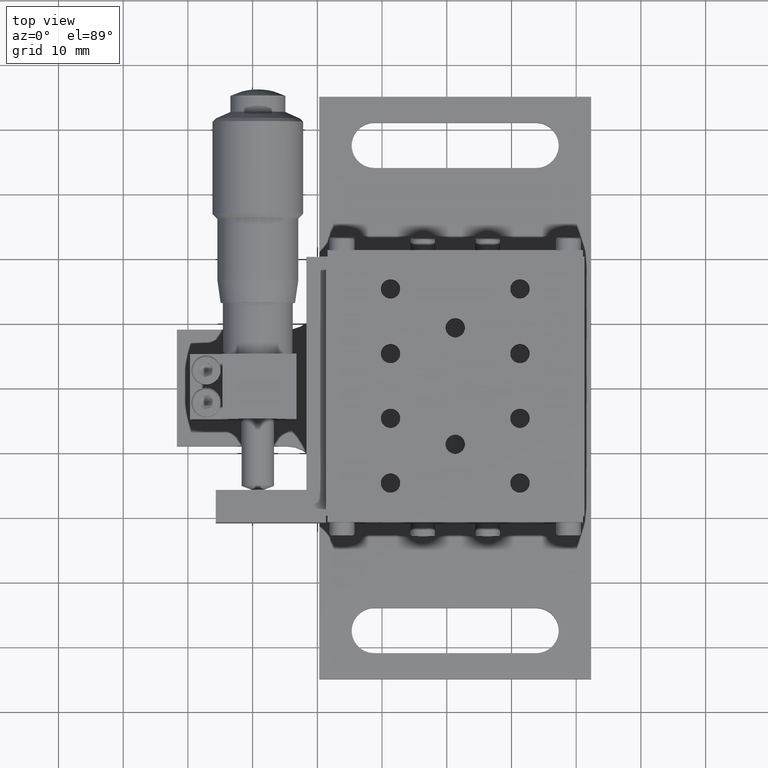
[diagram: clean part render]
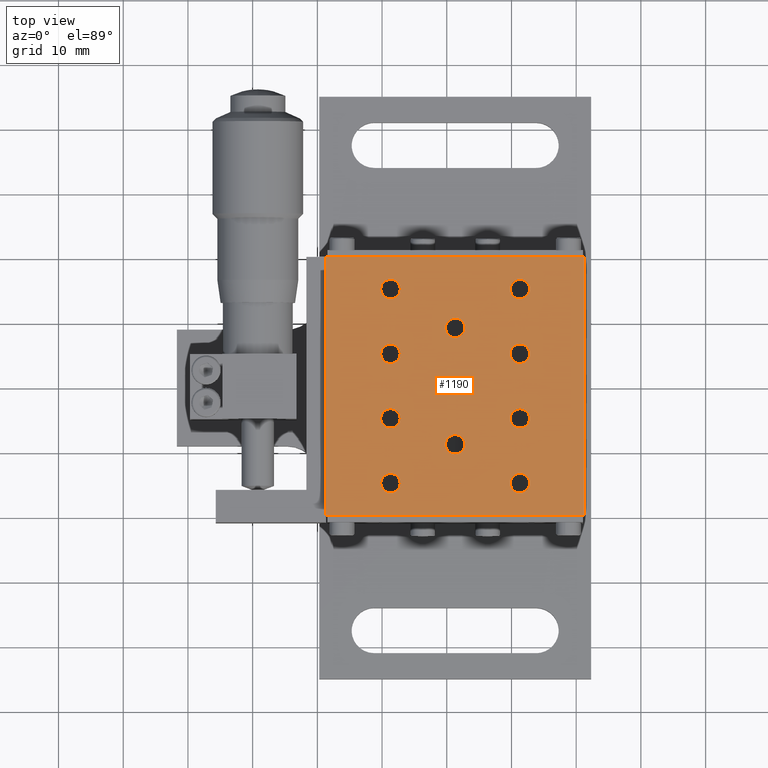
[diagram: same view with one face highlighted and labeled with its STEP entity id]
A machine part, top view. The second image highlights one B-rep face of the part: STEP entity #1190.
In plain terms, the highlighted face is a freeform B-spline surface patch.
Its self-contained STEP definition (entity closure, byte-faithful):
#108=FACE_BOUND('',#2498,.T.);
#109=FACE_BOUND('',#2499,.T.);
#110=FACE_BOUND('',#2500,.T.);
#111=FACE_BOUND('',#2501,.T.);
#112=FACE_BOUND('',#2502,.T.);
#113=FACE_BOUND('',#2503,.T.);
#114=FACE_BOUND('',#2504,.T.);
#115=FACE_BOUND('',#2505,.T.);
#116=FACE_BOUND('',#2506,.T.);
#117=FACE_BOUND('',#2507,.T.);
#356=B_SPLINE_SURFACE_WITH_KNOTS('',1,1,((#34229,#34230),(#34231,#34232)),
 .UNSPECIFIED.,.F.,.F.,.F.,(2,2),(2,2),(-24.12,24.12),(-24.12,24.12),
 .UNSPECIFIED.);
#358=B_SPLINE_SURFACE_WITH_KNOTS('',1,1,((#34237,#34238),(#34239,#34240)),
 .UNSPECIFIED.,.F.,.F.,.F.,(2,2),(2,2),(-16.07,1.57),(-44.12,4.12),
 .UNSPECIFIED.);
#381=B_SPLINE_SURFACE_WITH_KNOTS('',1,1,((#35177,#35178),(#35179,#35180)),
 .UNSPECIFIED.,.F.,.F.,.F.,(2,2),(2,2),(-16.07,1.57),(-47.42,4.42),
 .UNSPECIFIED.);
#400=B_SPLINE_SURFACE_WITH_KNOTS('',1,1,((#35253,#35254),(#35255,#35256)),
 .UNSPECIFIED.,.F.,.F.,.F.,(2,2),(2,2),(-1.57,16.07),(-4.12,44.12),
 .UNSPECIFIED.);
#419=B_SPLINE_SURFACE_WITH_KNOTS('',1,1,((#35329,#35330),(#35331,#35332)),
 .UNSPECIFIED.,.F.,.F.,.F.,(2,2),(2,2),(-0.32,2.32),(-4.12,44.12),
 .UNSPECIFIED.);
#1190=ADVANCED_FACE('',(#1811,#108,#109,#110,#111,#112,#113,#114,#115,#116,
#117),#356,.T.);
#1811=FACE_OUTER_BOUND('',#2497,.T.);
#2497=EDGE_LOOP('',(#4935,#4936,#4937,#4938));
#2498=EDGE_LOOP('',(#4939,#4940));
#2499=EDGE_LOOP('',(#4941,#4942));
#2500=EDGE_LOOP('',(#4943,#4944));
#2501=EDGE_LOOP('',(#4945,#4946));
#2502=EDGE_LOOP('',(#4947,#4948));
#2503=EDGE_LOOP('',(#4949,#4950));
#2504=EDGE_LOOP('',(#4951,#4952));
#2505=EDGE_LOOP('',(#4953,#4954));
#2506=EDGE_LOOP('',(#4955,#4956));
#2507=EDGE_LOOP('',(#4957,#4958));
#4935=ORIENTED_EDGE('',*,*,#18985,.T.);
#4936=ORIENTED_EDGE('',*,*,#18986,.T.);
#4937=ORIENTED_EDGE('',*,*,#18987,.T.);
#4938=ORIENTED_EDGE('',*,*,#18988,.T.);
#4939=ORIENTED_EDGE('',*,*,#18989,.T.);
#4940=ORIENTED_EDGE('',*,*,#18990,.T.);
#4941=ORIENTED_EDGE('',*,*,#18991,.T.);
#4942=ORIENTED_EDGE('',*,*,#18992,.T.);
#4943=ORIENTED_EDGE('',*,*,#18993,.T.);
#4944=ORIENTED_EDGE('',*,*,#18994,.T.);
#4945=ORIENTED_EDGE('',*,*,#18995,.T.);
#4946=ORIENTED_EDGE('',*,*,#18996,.T.);
#4947=ORIENTED_EDGE('',*,*,#18997,.T.);
#4948=ORIENTED_EDGE('',*,*,#18998,.T.);
#4949=ORIENTED_EDGE('',*,*,#18999,.T.);
#4950=ORIENTED_EDGE('',*,*,#19000,.T.);
#4951=ORIENTED_EDGE('',*,*,#19001,.T.);
#4952=ORIENTED_EDGE('',*,*,#19002,.T.);
#4953=ORIENTED_EDGE('',*,*,#19003,.T.);
#4954=ORIENTED_EDGE('',*,*,#19004,.T.);
#4955=ORIENTED_EDGE('',*,*,#19005,.T.);
#4956=ORIENTED_EDGE('',*,*,#19006,.T.);
#4957=ORIENTED_EDGE('',*,*,#19007,.T.);
#4958=ORIENTED_EDGE('',*,*,#19008,.T.);
#8165=PCURVE('',#356,#11395);
#8166=PCURVE('',#356,#11396);
#8167=PCURVE('',#356,#11397);
#8168=PCURVE('',#356,#11398);
#8169=PCURVE('',#356,#11399);
#8170=PCURVE('',#356,#11400);
#8171=PCURVE('',#356,#11401);
#8172=PCURVE('',#356,#11402);
#8173=PCURVE('',#356,#11403);
#8174=PCURVE('',#356,#11404);
#8175=PCURVE('',#356,#11405);
#8176=PCURVE('',#356,#11406);
#8177=PCURVE('',#356,#11407);
#8178=PCURVE('',#356,#11408);
#8179=PCURVE('',#356,#11409);
#8180=PCURVE('',#356,#11410);
#8181=PCURVE('',#356,#11411);
#8182=PCURVE('',#356,#11412);
#8183=PCURVE('',#356,#11413);
#8184=PCURVE('',#356,#11414);
#8185=PCURVE('',#356,#11415);
#8186=PCURVE('',#356,#11416);
#8187=PCURVE('',#356,#11417);
#8188=PCURVE('',#356,#11418);
#8195=PCURVE('',#358,#11425);
#8306=PCURVE('',#22026,#11536);
#8310=PCURVE('',#22027,#11540);
#8314=PCURVE('',#22028,#11544);
#8318=PCURVE('',#22029,#11548);
#8322=PCURVE('',#22030,#11552);
#8326=PCURVE('',#22031,#11556);
#8330=PCURVE('',#22032,#11560);
#8334=PCURVE('',#22033,#11564);
#8338=PCURVE('',#22034,#11568);
#8342=PCURVE('',#22035,#11572);
#8346=PCURVE('',#22036,#11576);
#8350=PCURVE('',#22037,#11580);
#8354=PCURVE('',#22038,#11584);
#8358=PCURVE('',#22039,#11588);
#8362=PCURVE('',#22040,#11592);
#8366=PCURVE('',#22041,#11596);
#8370=PCURVE('',#22042,#11600);
#8374=PCURVE('',#22043,#11604);
#8378=PCURVE('',#22044,#11608);
#8382=PCURVE('',#22045,#11612);
#8607=PCURVE('',#381,#11837);
#8711=PCURVE('',#400,#11941);
#8821=PCURVE('',#419,#12051);
#11395=DEFINITIONAL_REPRESENTATION('',(#14927),#46496);
#11396=DEFINITIONAL_REPRESENTATION('',(#14929),#46496);
#11397=DEFINITIONAL_REPRESENTATION('',(#14931),#46496);
#11398=DEFINITIONAL_REPRESENTATION('',(#14933),#46496);
#11399=DEFINITIONAL_REPRESENTATION('',(#20369),#46496);
#11400=DEFINITIONAL_REPRESENTATION('',(#20371),#46496);
#11401=DEFINITIONAL_REPRESENTATION('',(#20373),#46496);
#11402=DEFINITIONAL_REPRESENTATION('',(#20375),#46496);
#11403=DEFINITIONAL_REPRESENTATION('',(#20377),#46496);
#11404=DEFINITIONAL_REPRESENTATION('',(#20379),#46496);
#11405=DEFINITIONAL_REPRESENTATION('',(#20381),#46496);
#11406=DEFINITIONAL_REPRESENTATION('',(#20383),#46496);
#11407=DEFINITIONAL_REPRESENTATION('',(#20385),#46496);
#11408=DEFINITIONAL_REPRESENTATION('',(#20387),#46496);
#11409=DEFINITIONAL_REPRESENTATION('',(#20389),#46496);
#11410=DEFINITIONAL_REPRESENTATION('',(#20391),#46496);
#11411=DEFINITIONAL_REPRESENTATION('',(#20393),#46496);
#11412=DEFINITIONAL_REPRESENTATION('',(#20395),#46496);
#11413=DEFINITIONAL_REPRESENTATION('',(#20397),#46496);
#11414=DEFINITIONAL_REPRESENTATION('',(#20399),#46496);
#11415=DEFINITIONAL_REPRESENTATION('',(#20401),#46496);
#11416=DEFINITIONAL_REPRESENTATION('',(#20403),#46496);
#11417=DEFINITIONAL_REPRESENTATION('',(#20405),#46496);
#11418=DEFINITIONAL_REPRESENTATION('',(#20407),#46496);
#11425=DEFINITIONAL_REPRESENTATION('',(#14946),#46496);
#11536=DEFINITIONAL_REPRESENTATION('',(#15064),#46496);
#11540=DEFINITIONAL_REPRESENTATION('',(#15069),#46496);
#11544=DEFINITIONAL_REPRESENTATION('',(#15074),#46496);
#11548=DEFINITIONAL_REPRESENTATION('',(#15079),#46496);
#11552=DEFINITIONAL_REPRESENTATION('',(#15084),#46496);
#11556=DEFINITIONAL_REPRESENTATION('',(#15089),#46496);
#11560=DEFINITIONAL_REPRESENTATION('',(#15094),#46496);
#11564=DEFINITIONAL_REPRESENTATION('',(#15099),#46496);
#11568=DEFINITIONAL_REPRESENTATION('',(#15104),#46496);
#11572=DEFINITIONAL_REPRESENTATION('',(#15109),#46496);
#11576=DEFINITIONAL_REPRESENTATION('',(#15114),#46496);
#11580=DEFINITIONAL_REPRESENTATION('',(#15119),#46496);
#11584=DEFINITIONAL_REPRESENTATION('',(#15124),#46496);
#11588=DEFINITIONAL_REPRESENTATION('',(#15129),#46496);
#11592=DEFINITIONAL_REPRESENTATION('',(#15134),#46496);
#11596=DEFINITIONAL_REPRESENTATION('',(#15139),#46496);
#11600=DEFINITIONAL_REPRESENTATION('',(#15144),#46496);
#11604=DEFINITIONAL_REPRESENTATION('',(#15149),#46496);
#11608=DEFINITIONAL_REPRESENTATION('',(#15154),#46496);
#11612=DEFINITIONAL_REPRESENTATION('',(#15159),#46496);
#11837=DEFINITIONAL_REPRESENTATION('',(#15437),#46496);
#11941=DEFINITIONAL_REPRESENTATION('',(#15548),#46496);
#12051=DEFINITIONAL_REPRESENTATION('',(#15668),#46496);
#14926=B_SPLINE_CURVE_WITH_KNOTS('',1,(#42532,#42533),.UNSPECIFIED.,.F.,
 .F.,(2,2),(0.,40.),.UNSPECIFIED.);
#14927=B_SPLINE_CURVE_WITH_KNOTS('',1,(#42534,#42535),.UNSPECIFIED.,.F.,
 .F.,(2,2),(0.,40.),.UNSPECIFIED.);
#14928=B_SPLINE_CURVE_WITH_KNOTS('',1,(#42536,#42537),.UNSPECIFIED.,.F.,
 .F.,(2,2),(0.,40.),.UNSPECIFIED.);
#14929=B_SPLINE_CURVE_WITH_KNOTS('',1,(#42538,#42539),.UNSPECIFIED.,.F.,
 .F.,(2,2),(0.,40.),.UNSPECIFIED.);
#14930=B_SPLINE_CURVE_WITH_KNOTS('',1,(#42540,#42541),.UNSPECIFIED.,.F.,
 .F.,(2,2),(0.,40.),.UNSPECIFIED.);
#14931=B_SPLINE_CURVE_WITH_KNOTS('',1,(#42542,#42543),.UNSPECIFIED.,.F.,
 .F.,(2,2),(0.,40.),.UNSPECIFIED.);
#14932=B_SPLINE_CURVE_WITH_KNOTS('',1,(#42544,#42545),.UNSPECIFIED.,.F.,
 .F.,(2,2),(0.,40.),.UNSPECIFIED.);
#14933=B_SPLINE_CURVE_WITH_KNOTS('',1,(#42546,#42547),.UNSPECIFIED.,.F.,
 .F.,(2,2),(0.,40.),.UNSPECIFIED.);
#14946=B_SPLINE_CURVE_WITH_KNOTS('',1,(#42772,#42773),.UNSPECIFIED.,.F.,
 .F.,(2,2),(0.,40.),.UNSPECIFIED.);
#15064=B_SPLINE_CURVE_WITH_KNOTS('',1,(#43404,#43405),.UNSPECIFIED.,.F.,
 .F.,(2,2),(0.,4.71238898038469),.UNSPECIFIED.);
#15069=B_SPLINE_CURVE_WITH_KNOTS('',1,(#43414,#43415),.UNSPECIFIED.,.F.,
 .F.,(2,2),(4.71238898038469,9.42477796076938),.UNSPECIFIED.);
#15074=B_SPLINE_CURVE_WITH_KNOTS('',1,(#43424,#43425),.UNSPECIFIED.,.F.,
 .F.,(2,2),(0.,4.71238898038469),.UNSPECIFIED.);
#15079=B_SPLINE_CURVE_WITH_KNOTS('',1,(#43434,#43435),.UNSPECIFIED.,.F.,
 .F.,(2,2),(4.71238898038469,9.42477796076938),.UNSPECIFIED.);
#15084=B_SPLINE_CURVE_WITH_KNOTS('',1,(#43444,#43445),.UNSPECIFIED.,.F.,
 .F.,(2,2),(0.,4.71238898038469),.UNSPECIFIED.);
#15089=B_SPLINE_CURVE_WITH_KNOTS('',1,(#43454,#43455),.UNSPECIFIED.,.F.,
 .F.,(2,2),(4.71238898038469,9.42477796076938),.UNSPECIFIED.);
#15094=B_SPLINE_CURVE_WITH_KNOTS('',1,(#43464,#43465),.UNSPECIFIED.,.F.,
 .F.,(2,2),(0.,4.71238898038469),.UNSPECIFIED.);
#15099=B_SPLINE_CURVE_WITH_KNOTS('',1,(#43474,#43475),.UNSPECIFIED.,.F.,
 .F.,(2,2),(4.71238898038469,9.42477796076938),.UNSPECIFIED.);
#15104=B_SPLINE_CURVE_WITH_KNOTS('',1,(#43484,#43485),.UNSPECIFIED.,.F.,
 .F.,(2,2),(0.,4.71238898038469),.UNSPECIFIED.);
#15109=B_SPLINE_CURVE_WITH_KNOTS('',1,(#43494,#43495),.UNSPECIFIED.,.F.,
 .F.,(2,2),(4.71238898038469,9.42477796076938),.UNSPECIFIED.);
#15114=B_SPLINE_CURVE_WITH_KNOTS('',1,(#43504,#43505),.UNSPECIFIED.,.F.,
 .F.,(2,2),(0.,4.71238898038469),.UNSPECIFIED.);
#15119=B_SPLINE_CURVE_WITH_KNOTS('',1,(#43514,#43515),.UNSPECIFIED.,.F.,
 .F.,(2,2),(4.71238898038469,9.42477796076938),.UNSPECIFIED.);
#15124=B_SPLINE_CURVE_WITH_KNOTS('',1,(#43524,#43525),.UNSPECIFIED.,.F.,
 .F.,(2,2),(0.,4.71238898038469),.UNSPECIFIED.);
#15129=B_SPLINE_CURVE_WITH_KNOTS('',1,(#43534,#43535),.UNSPECIFIED.,.F.,
 .F.,(2,2),(4.71238898038469,9.42477796076938),.UNSPECIFIED.);
#15134=B_SPLINE_CURVE_WITH_KNOTS('',1,(#43544,#43545),.UNSPECIFIED.,.F.,
 .F.,(2,2),(0.,4.71238898038469),.UNSPECIFIED.);
#15139=B_SPLINE_CURVE_WITH_KNOTS('',1,(#43554,#43555),.UNSPECIFIED.,.F.,
 .F.,(2,2),(4.71238898038469,9.42477796076938),.UNSPECIFIED.);
#15144=B_SPLINE_CURVE_WITH_KNOTS('',1,(#43564,#43565),.UNSPECIFIED.,.F.,
 .F.,(2,2),(0.,4.71238898038469),.UNSPECIFIED.);
#15149=B_SPLINE_CURVE_WITH_KNOTS('',1,(#43574,#43575),.UNSPECIFIED.,.F.,
 .F.,(2,2),(4.71238898038469,9.42477796076938),.UNSPECIFIED.);
#15154=B_SPLINE_CURVE_WITH_KNOTS('',1,(#43584,#43585),.UNSPECIFIED.,.F.,
 .F.,(2,2),(0.,4.71238898038469),.UNSPECIFIED.);
#15159=B_SPLINE_CURVE_WITH_KNOTS('',1,(#43594,#43595),.UNSPECIFIED.,.F.,
 .F.,(2,2),(4.71238898038469,9.42477796076938),.UNSPECIFIED.);
#15437=B_SPLINE_CURVE_WITH_KNOTS('',1,(#44578,#44579),.UNSPECIFIED.,.F.,
 .F.,(2,2),(0.,40.),.UNSPECIFIED.);
#15548=B_SPLINE_CURVE_WITH_KNOTS('',1,(#44914,#44915),.UNSPECIFIED.,.F.,
 .F.,(2,2),(0.,40.),.UNSPECIFIED.);
#15668=B_SPLINE_CURVE_WITH_KNOTS('',1,(#45267,#45268),.UNSPECIFIED.,.F.,
 .F.,(2,2),(0.,40.),.UNSPECIFIED.);
#17301=SURFACE_CURVE('',#14926,(#8165,#8711),.PCURVE_S1.);
#17302=SURFACE_CURVE('',#14928,(#8166,#8195),.PCURVE_S1.);
#17303=SURFACE_CURVE('',#14930,(#8167,#8607),.PCURVE_S1.);
#17304=SURFACE_CURVE('',#14932,(#8168,#8821),.PCURVE_S1.);
#17305=SURFACE_CURVE('',#20368,(#8169,#8378),.PCURVE_S1.);
#17306=SURFACE_CURVE('',#20370,(#8170,#8382),.PCURVE_S1.);
#17307=SURFACE_CURVE('',#20372,(#8171,#8370),.PCURVE_S1.);
#17308=SURFACE_CURVE('',#20374,(#8172,#8374),.PCURVE_S1.);
#17309=SURFACE_CURVE('',#20376,(#8173,#8362),.PCURVE_S1.);
#17310=SURFACE_CURVE('',#20378,(#8174,#8366),.PCURVE_S1.);
#17311=SURFACE_CURVE('',#20380,(#8175,#8354),.PCURVE_S1.);
#17312=SURFACE_CURVE('',#20382,(#8176,#8358),.PCURVE_S1.);
#17313=SURFACE_CURVE('',#20384,(#8177,#8346),.PCURVE_S1.);
#17314=SURFACE_CURVE('',#20386,(#8178,#8350),.PCURVE_S1.);
#17315=SURFACE_CURVE('',#20388,(#8179,#8338),.PCURVE_S1.);
#17316=SURFACE_CURVE('',#20390,(#8180,#8342),.PCURVE_S1.);
#17317=SURFACE_CURVE('',#20392,(#8181,#8330),.PCURVE_S1.);
#17318=SURFACE_CURVE('',#20394,(#8182,#8334),.PCURVE_S1.);
#17319=SURFACE_CURVE('',#20396,(#8183,#8322),.PCURVE_S1.);
#17320=SURFACE_CURVE('',#20398,(#8184,#8326),.PCURVE_S1.);
#17321=SURFACE_CURVE('',#20400,(#8185,#8314),.PCURVE_S1.);
#17322=SURFACE_CURVE('',#20402,(#8186,#8318),.PCURVE_S1.);
#17323=SURFACE_CURVE('',#20404,(#8187,#8306),.PCURVE_S1.);
#17324=SURFACE_CURVE('',#20406,(#8188,#8310),.PCURVE_S1.);
#18985=EDGE_CURVE('',#21516,#21518,#17301,.T.);
#18986=EDGE_CURVE('',#21518,#21519,#17302,.T.);
#18987=EDGE_CURVE('',#21519,#21517,#17303,.T.);
#18988=EDGE_CURVE('',#21517,#21516,#17304,.T.);
#18989=EDGE_CURVE('',#21521,#21520,#17305,.T.);
#18990=EDGE_CURVE('',#21520,#21521,#17306,.T.);
#18991=EDGE_CURVE('',#21523,#21522,#17307,.T.);
#18992=EDGE_CURVE('',#21522,#21523,#17308,.T.);
#18993=EDGE_CURVE('',#21525,#21524,#17309,.T.);
#18994=EDGE_CURVE('',#21524,#21525,#17310,.T.);
#18995=EDGE_CURVE('',#21527,#21526,#17311,.T.);
#18996=EDGE_CURVE('',#21526,#21527,#17312,.T.);
#18997=EDGE_CURVE('',#21529,#21528,#17313,.T.);
#18998=EDGE_CURVE('',#21528,#21529,#17314,.T.);
#18999=EDGE_CURVE('',#21531,#21530,#17315,.T.);
#19000=EDGE_CURVE('',#21530,#21531,#17316,.T.);
#19001=EDGE_CURVE('',#21533,#21532,#17317,.T.);
#19002=EDGE_CURVE('',#21532,#21533,#17318,.T.);
#19003=EDGE_CURVE('',#21535,#21534,#17319,.T.);
#19004=EDGE_CURVE('',#21534,#21535,#17320,.T.);
#19005=EDGE_CURVE('',#21537,#21536,#17321,.T.);
#19006=EDGE_CURVE('',#21536,#21537,#17322,.T.);
#19007=EDGE_CURVE('',#21539,#21538,#17323,.T.);
#19008=EDGE_CURVE('',#21538,#21539,#17324,.T.);
#20368=(
BOUNDED_CURVE()
B_SPLINE_CURVE(2,(#42548,#42549,#42550,#42551,#42552),.UNSPECIFIED.,.F.,
 .F.)
B_SPLINE_CURVE_WITH_KNOTS((3,2,3),(0.,2.35619449019234,4.71238898038469),
 .UNSPECIFIED.)
CURVE()
GEOMETRIC_REPRESENTATION_ITEM()
RATIONAL_B_SPLINE_CURVE((1.,0.707106781186548,1.,0.707106781186548,1.))
REPRESENTATION_ITEM('')
);
#20369=(
BOUNDED_CURVE()
B_SPLINE_CURVE(2,(#42553,#42554,#42555,#42556,#42557),.UNSPECIFIED.,.F.,
 .F.)
B_SPLINE_CURVE_WITH_KNOTS((3,2,3),(0.,2.35619449019234,4.71238898038469),
 .UNSPECIFIED.)
CURVE()
GEOMETRIC_REPRESENTATION_ITEM()
RATIONAL_B_SPLINE_CURVE((1.,0.707106781186548,1.,0.707106781186548,1.))
REPRESENTATION_ITEM('')
);
#20370=(
BOUNDED_CURVE()
B_SPLINE_CURVE(2,(#42558,#42559,#42560,#42561,#42562),.UNSPECIFIED.,.F.,
 .F.)
B_SPLINE_CURVE_WITH_KNOTS((3,2,3),(4.71238898038469,7.06858347057703,9.42477796076938),
 .UNSPECIFIED.)
CURVE()
GEOMETRIC_REPRESENTATION_ITEM()
RATIONAL_B_SPLINE_CURVE((1.,0.707106781186548,1.,0.707106781186548,1.))
REPRESENTATION_ITEM('')
);
#20371=(
BOUNDED_CURVE()
B_SPLINE_CURVE(2,(#42563,#42564,#42565,#42566,#42567),.UNSPECIFIED.,.F.,
 .F.)
B_SPLINE_CURVE_WITH_KNOTS((3,2,3),(4.71238898038469,7.06858347057703,9.42477796076938),
 .UNSPECIFIED.)
CURVE()
GEOMETRIC_REPRESENTATION_ITEM()
RATIONAL_B_SPLINE_CURVE((1.,0.707106781186548,1.,0.707106781186548,1.))
REPRESENTATION_ITEM('')
);
#20372=(
BOUNDED_CURVE()
B_SPLINE_CURVE(2,(#42568,#42569,#42570,#42571,#42572),.UNSPECIFIED.,.F.,
 .F.)
B_SPLINE_CURVE_WITH_KNOTS((3,2,3),(0.,2.35619449019234,4.71238898038469),
 .UNSPECIFIED.)
CURVE()
GEOMETRIC_REPRESENTATION_ITEM()
RATIONAL_B_SPLINE_CURVE((1.,0.707106781186548,1.,0.707106781186548,1.))
REPRESENTATION_ITEM('')
);
#20373=(
BOUNDED_CURVE()
B_SPLINE_CURVE(2,(#42573,#42574,#42575,#42576,#42577),.UNSPECIFIED.,.F.,
 .F.)
B_SPLINE_CURVE_WITH_KNOTS((3,2,3),(0.,2.35619449019234,4.71238898038469),
 .UNSPECIFIED.)
CURVE()
GEOMETRIC_REPRESENTATION_ITEM()
RATIONAL_B_SPLINE_CURVE((1.,0.707106781186548,1.,0.707106781186548,1.))
REPRESENTATION_ITEM('')
);
#20374=(
BOUNDED_CURVE()
B_SPLINE_CURVE(2,(#42578,#42579,#42580,#42581,#42582),.UNSPECIFIED.,.F.,
 .F.)
B_SPLINE_CURVE_WITH_KNOTS((3,2,3),(4.71238898038469,7.06858347057703,9.42477796076938),
 .UNSPECIFIED.)
CURVE()
GEOMETRIC_REPRESENTATION_ITEM()
RATIONAL_B_SPLINE_CURVE((1.,0.707106781186548,1.,0.707106781186548,1.))
REPRESENTATION_ITEM('')
);
#20375=(
BOUNDED_CURVE()
B_SPLINE_CURVE(2,(#42583,#42584,#42585,#42586,#42587),.UNSPECIFIED.,.F.,
 .F.)
B_SPLINE_CURVE_WITH_KNOTS((3,2,3),(4.71238898038469,7.06858347057703,9.42477796076938),
 .UNSPECIFIED.)
CURVE()
GEOMETRIC_REPRESENTATION_ITEM()
RATIONAL_B_SPLINE_CURVE((1.,0.707106781186548,1.,0.707106781186548,1.))
REPRESENTATION_ITEM('')
);
#20376=(
BOUNDED_CURVE()
B_SPLINE_CURVE(2,(#42588,#42589,#42590,#42591,#42592),.UNSPECIFIED.,.F.,
 .F.)
B_SPLINE_CURVE_WITH_KNOTS((3,2,3),(0.,2.35619449019234,4.71238898038469),
 .UNSPECIFIED.)
CURVE()
GEOMETRIC_REPRESENTATION_ITEM()
RATIONAL_B_SPLINE_CURVE((1.,0.707106781186548,1.,0.707106781186548,1.))
REPRESENTATION_ITEM('')
);
#20377=(
BOUNDED_CURVE()
B_SPLINE_CURVE(2,(#42593,#42594,#42595,#42596,#42597),.UNSPECIFIED.,.F.,
 .F.)
B_SPLINE_CURVE_WITH_KNOTS((3,2,3),(0.,2.35619449019234,4.71238898038469),
 .UNSPECIFIED.)
CURVE()
GEOMETRIC_REPRESENTATION_ITEM()
RATIONAL_B_SPLINE_CURVE((1.,0.707106781186548,1.,0.707106781186548,1.))
REPRESENTATION_ITEM('')
);
#20378=(
BOUNDED_CURVE()
B_SPLINE_CURVE(2,(#42598,#42599,#42600,#42601,#42602),.UNSPECIFIED.,.F.,
 .F.)
B_SPLINE_CURVE_WITH_KNOTS((3,2,3),(4.71238898038469,7.06858347057703,9.42477796076938),
 .UNSPECIFIED.)
CURVE()
GEOMETRIC_REPRESENTATION_ITEM()
RATIONAL_B_SPLINE_CURVE((1.,0.707106781186548,1.,0.707106781186548,1.))
REPRESENTATION_ITEM('')
);
#20379=(
BOUNDED_CURVE()
B_SPLINE_CURVE(2,(#42603,#42604,#42605,#42606,#42607),.UNSPECIFIED.,.F.,
 .F.)
B_SPLINE_CURVE_WITH_KNOTS((3,2,3),(4.71238898038469,7.06858347057703,9.42477796076938),
 .UNSPECIFIED.)
CURVE()
GEOMETRIC_REPRESENTATION_ITEM()
RATIONAL_B_SPLINE_CURVE((1.,0.707106781186548,1.,0.707106781186548,1.))
REPRESENTATION_ITEM('')
);
#20380=(
BOUNDED_CURVE()
B_SPLINE_CURVE(2,(#42608,#42609,#42610,#42611,#42612),.UNSPECIFIED.,.F.,
 .F.)
B_SPLINE_CURVE_WITH_KNOTS((3,2,3),(0.,2.35619449019234,4.71238898038469),
 .UNSPECIFIED.)
CURVE()
GEOMETRIC_REPRESENTATION_ITEM()
RATIONAL_B_SPLINE_CURVE((1.,0.707106781186548,1.,0.707106781186548,1.))
REPRESENTATION_ITEM('')
);
#20381=(
BOUNDED_CURVE()
B_SPLINE_CURVE(2,(#42613,#42614,#42615,#42616,#42617),.UNSPECIFIED.,.F.,
 .F.)
B_SPLINE_CURVE_WITH_KNOTS((3,2,3),(0.,2.35619449019234,4.71238898038469),
 .UNSPECIFIED.)
CURVE()
GEOMETRIC_REPRESENTATION_ITEM()
RATIONAL_B_SPLINE_CURVE((1.,0.707106781186548,1.,0.707106781186548,1.))
REPRESENTATION_ITEM('')
);
#20382=(
BOUNDED_CURVE()
B_SPLINE_CURVE(2,(#42618,#42619,#42620,#42621,#42622),.UNSPECIFIED.,.F.,
 .F.)
B_SPLINE_CURVE_WITH_KNOTS((3,2,3),(4.71238898038469,7.06858347057703,9.42477796076938),
 .UNSPECIFIED.)
CURVE()
GEOMETRIC_REPRESENTATION_ITEM()
RATIONAL_B_SPLINE_CURVE((1.,0.707106781186548,1.,0.707106781186548,1.))
REPRESENTATION_ITEM('')
);
#20383=(
BOUNDED_CURVE()
B_SPLINE_CURVE(2,(#42623,#42624,#42625,#42626,#42627),.UNSPECIFIED.,.F.,
 .F.)
B_SPLINE_CURVE_WITH_KNOTS((3,2,3),(4.71238898038469,7.06858347057703,9.42477796076938),
 .UNSPECIFIED.)
CURVE()
GEOMETRIC_REPRESENTATION_ITEM()
RATIONAL_B_SPLINE_CURVE((1.,0.707106781186548,1.,0.707106781186548,1.))
REPRESENTATION_ITEM('')
);
#20384=(
BOUNDED_CURVE()
B_SPLINE_CURVE(2,(#42628,#42629,#42630,#42631,#42632),.UNSPECIFIED.,.F.,
 .F.)
B_SPLINE_CURVE_WITH_KNOTS((3,2,3),(0.,2.35619449019234,4.71238898038469),
 .UNSPECIFIED.)
CURVE()
GEOMETRIC_REPRESENTATION_ITEM()
RATIONAL_B_SPLINE_CURVE((1.,0.707106781186548,1.,0.707106781186548,1.))
REPRESENTATION_ITEM('')
);
#20385=(
BOUNDED_CURVE()
B_SPLINE_CURVE(2,(#42633,#42634,#42635,#42636,#42637),.UNSPECIFIED.,.F.,
 .F.)
B_SPLINE_CURVE_WITH_KNOTS((3,2,3),(0.,2.35619449019234,4.71238898038469),
 .UNSPECIFIED.)
CURVE()
GEOMETRIC_REPRESENTATION_ITEM()
RATIONAL_B_SPLINE_CURVE((1.,0.707106781186548,1.,0.707106781186548,1.))
REPRESENTATION_ITEM('')
);
#20386=(
BOUNDED_CURVE()
B_SPLINE_CURVE(2,(#42638,#42639,#42640,#42641,#42642),.UNSPECIFIED.,.F.,
 .F.)
B_SPLINE_CURVE_WITH_KNOTS((3,2,3),(4.71238898038469,7.06858347057703,9.42477796076938),
 .UNSPECIFIED.)
CURVE()
GEOMETRIC_REPRESENTATION_ITEM()
RATIONAL_B_SPLINE_CURVE((1.,0.707106781186548,1.,0.707106781186548,1.))
REPRESENTATION_ITEM('')
);
#20387=(
BOUNDED_CURVE()
B_SPLINE_CURVE(2,(#42643,#42644,#42645,#42646,#42647),.UNSPECIFIED.,.F.,
 .F.)
B_SPLINE_CURVE_WITH_KNOTS((3,2,3),(4.71238898038469,7.06858347057703,9.42477796076938),
 .UNSPECIFIED.)
CURVE()
GEOMETRIC_REPRESENTATION_ITEM()
RATIONAL_B_SPLINE_CURVE((1.,0.707106781186548,1.,0.707106781186548,1.))
REPRESENTATION_ITEM('')
);
#20388=(
BOUNDED_CURVE()
B_SPLINE_CURVE(2,(#42648,#42649,#42650,#42651,#42652),.UNSPECIFIED.,.F.,
 .F.)
B_SPLINE_CURVE_WITH_KNOTS((3,2,3),(0.,2.35619449019234,4.71238898038469),
 .UNSPECIFIED.)
CURVE()
GEOMETRIC_REPRESENTATION_ITEM()
RATIONAL_B_SPLINE_CURVE((1.,0.707106781186548,1.,0.707106781186548,1.))
REPRESENTATION_ITEM('')
);
#20389=(
BOUNDED_CURVE()
B_SPLINE_CURVE(2,(#42653,#42654,#42655,#42656,#42657),.UNSPECIFIED.,.F.,
 .F.)
B_SPLINE_CURVE_WITH_KNOTS((3,2,3),(0.,2.35619449019234,4.71238898038469),
 .UNSPECIFIED.)
CURVE()
GEOMETRIC_REPRESENTATION_ITEM()
RATIONAL_B_SPLINE_CURVE((1.,0.707106781186548,1.,0.707106781186548,1.))
REPRESENTATION_ITEM('')
);
#20390=(
BOUNDED_CURVE()
B_SPLINE_CURVE(2,(#42658,#42659,#42660,#42661,#42662),.UNSPECIFIED.,.F.,
 .F.)
B_SPLINE_CURVE_WITH_KNOTS((3,2,3),(4.71238898038469,7.06858347057703,9.42477796076938),
 .UNSPECIFIED.)
CURVE()
GEOMETRIC_REPRESENTATION_ITEM()
RATIONAL_B_SPLINE_CURVE((1.,0.707106781186548,1.,0.707106781186548,1.))
REPRESENTATION_ITEM('')
);
#20391=(
BOUNDED_CURVE()
B_SPLINE_CURVE(2,(#42663,#42664,#42665,#42666,#42667),.UNSPECIFIED.,.F.,
 .F.)
B_SPLINE_CURVE_WITH_KNOTS((3,2,3),(4.71238898038469,7.06858347057703,9.42477796076938),
 .UNSPECIFIED.)
CURVE()
GEOMETRIC_REPRESENTATION_ITEM()
RATIONAL_B_SPLINE_CURVE((1.,0.707106781186548,1.,0.707106781186548,1.))
REPRESENTATION_ITEM('')
);
#20392=(
BOUNDED_CURVE()
B_SPLINE_CURVE(2,(#42668,#42669,#42670,#42671,#42672),.UNSPECIFIED.,.F.,
 .F.)
B_SPLINE_CURVE_WITH_KNOTS((3,2,3),(0.,2.35619449019234,4.71238898038469),
 .UNSPECIFIED.)
CURVE()
GEOMETRIC_REPRESENTATION_ITEM()
RATIONAL_B_SPLINE_CURVE((1.,0.707106781186548,1.,0.707106781186548,1.))
REPRESENTATION_ITEM('')
);
#20393=(
BOUNDED_CURVE()
B_SPLINE_CURVE(2,(#42673,#42674,#42675,#42676,#42677),.UNSPECIFIED.,.F.,
 .F.)
B_SPLINE_CURVE_WITH_KNOTS((3,2,3),(0.,2.35619449019234,4.71238898038469),
 .UNSPECIFIED.)
CURVE()
GEOMETRIC_REPRESENTATION_ITEM()
RATIONAL_B_SPLINE_CURVE((1.,0.707106781186548,1.,0.707106781186548,1.))
REPRESENTATION_ITEM('')
);
#20394=(
BOUNDED_CURVE()
B_SPLINE_CURVE(2,(#42678,#42679,#42680,#42681,#42682),.UNSPECIFIED.,.F.,
 .F.)
B_SPLINE_CURVE_WITH_KNOTS((3,2,3),(4.71238898038469,7.06858347057703,9.42477796076938),
 .UNSPECIFIED.)
CURVE()
GEOMETRIC_REPRESENTATION_ITEM()
RATIONAL_B_SPLINE_CURVE((1.,0.707106781186548,1.,0.707106781186548,1.))
REPRESENTATION_ITEM('')
);
#20395=(
BOUNDED_CURVE()
B_SPLINE_CURVE(2,(#42683,#42684,#42685,#42686,#42687),.UNSPECIFIED.,.F.,
 .F.)
B_SPLINE_CURVE_WITH_KNOTS((3,2,3),(4.71238898038469,7.06858347057703,9.42477796076938),
 .UNSPECIFIED.)
CURVE()
GEOMETRIC_REPRESENTATION_ITEM()
RATIONAL_B_SPLINE_CURVE((1.,0.707106781186548,1.,0.707106781186548,1.))
REPRESENTATION_ITEM('')
);
#20396=(
BOUNDED_CURVE()
B_SPLINE_CURVE(2,(#42688,#42689,#42690,#42691,#42692),.UNSPECIFIED.,.F.,
 .F.)
B_SPLINE_CURVE_WITH_KNOTS((3,2,3),(0.,2.35619449019234,4.71238898038469),
 .UNSPECIFIED.)
CURVE()
GEOMETRIC_REPRESENTATION_ITEM()
RATIONAL_B_SPLINE_CURVE((1.,0.707106781186548,1.,0.707106781186548,1.))
REPRESENTATION_ITEM('')
);
#20397=(
BOUNDED_CURVE()
B_SPLINE_CURVE(2,(#42693,#42694,#42695,#42696,#42697),.UNSPECIFIED.,.F.,
 .F.)
B_SPLINE_CURVE_WITH_KNOTS((3,2,3),(0.,2.35619449019234,4.71238898038469),
 .UNSPECIFIED.)
CURVE()
GEOMETRIC_REPRESENTATION_ITEM()
RATIONAL_B_SPLINE_CURVE((1.,0.707106781186548,1.,0.707106781186548,1.))
REPRESENTATION_ITEM('')
);
#20398=(
BOUNDED_CURVE()
B_SPLINE_CURVE(2,(#42698,#42699,#42700,#42701,#42702),.UNSPECIFIED.,.F.,
 .F.)
B_SPLINE_CURVE_WITH_KNOTS((3,2,3),(4.71238898038469,7.06858347057703,9.42477796076938),
 .UNSPECIFIED.)
CURVE()
GEOMETRIC_REPRESENTATION_ITEM()
RATIONAL_B_SPLINE_CURVE((1.,0.707106781186548,1.,0.707106781186548,1.))
REPRESENTATION_ITEM('')
);
#20399=(
BOUNDED_CURVE()
B_SPLINE_CURVE(2,(#42703,#42704,#42705,#42706,#42707),.UNSPECIFIED.,.F.,
 .F.)
B_SPLINE_CURVE_WITH_KNOTS((3,2,3),(4.71238898038469,7.06858347057703,9.42477796076938),
 .UNSPECIFIED.)
CURVE()
GEOMETRIC_REPRESENTATION_ITEM()
RATIONAL_B_SPLINE_CURVE((1.,0.707106781186548,1.,0.707106781186548,1.))
REPRESENTATION_ITEM('')
);
#20400=(
BOUNDED_CURVE()
B_SPLINE_CURVE(2,(#42708,#42709,#42710,#42711,#42712),.UNSPECIFIED.,.F.,
 .F.)
B_SPLINE_CURVE_WITH_KNOTS((3,2,3),(0.,2.35619449019234,4.71238898038469),
 .UNSPECIFIED.)
CURVE()
GEOMETRIC_REPRESENTATION_ITEM()
RATIONAL_B_SPLINE_CURVE((1.,0.707106781186548,1.,0.707106781186548,1.))
REPRESENTATION_ITEM('')
);
#20401=(
BOUNDED_CURVE()
B_SPLINE_CURVE(2,(#42713,#42714,#42715,#42716,#42717),.UNSPECIFIED.,.F.,
 .F.)
B_SPLINE_CURVE_WITH_KNOTS((3,2,3),(0.,2.35619449019234,4.71238898038469),
 .UNSPECIFIED.)
CURVE()
GEOMETRIC_REPRESENTATION_ITEM()
RATIONAL_B_SPLINE_CURVE((1.,0.707106781186548,1.,0.707106781186548,1.))
REPRESENTATION_ITEM('')
);
#20402=(
BOUNDED_CURVE()
B_SPLINE_CURVE(2,(#42718,#42719,#42720,#42721,#42722),.UNSPECIFIED.,.F.,
 .F.)
B_SPLINE_CURVE_WITH_KNOTS((3,2,3),(4.71238898038469,7.06858347057703,9.42477796076938),
 .UNSPECIFIED.)
CURVE()
GEOMETRIC_REPRESENTATION_ITEM()
RATIONAL_B_SPLINE_CURVE((1.,0.707106781186548,1.,0.707106781186548,1.))
REPRESENTATION_ITEM('')
);
#20403=(
BOUNDED_CURVE()
B_SPLINE_CURVE(2,(#42723,#42724,#42725,#42726,#42727),.UNSPECIFIED.,.F.,
 .F.)
B_SPLINE_CURVE_WITH_KNOTS((3,2,3),(4.71238898038469,7.06858347057703,9.42477796076938),
 .UNSPECIFIED.)
CURVE()
GEOMETRIC_REPRESENTATION_ITEM()
RATIONAL_B_SPLINE_CURVE((1.,0.707106781186548,1.,0.707106781186548,1.))
REPRESENTATION_ITEM('')
);
#20404=(
BOUNDED_CURVE()
B_SPLINE_CURVE(2,(#42728,#42729,#42730,#42731,#42732),.UNSPECIFIED.,.F.,
 .F.)
B_SPLINE_CURVE_WITH_KNOTS((3,2,3),(0.,2.35619449019234,4.71238898038469),
 .UNSPECIFIED.)
CURVE()
GEOMETRIC_REPRESENTATION_ITEM()
RATIONAL_B_SPLINE_CURVE((1.,0.707106781186548,1.,0.707106781186548,1.))
REPRESENTATION_ITEM('')
);
#20405=(
BOUNDED_CURVE()
B_SPLINE_CURVE(2,(#42733,#42734,#42735,#42736,#42737),.UNSPECIFIED.,.F.,
 .F.)
B_SPLINE_CURVE_WITH_KNOTS((3,2,3),(0.,2.35619449019234,4.71238898038469),
 .UNSPECIFIED.)
CURVE()
GEOMETRIC_REPRESENTATION_ITEM()
RATIONAL_B_SPLINE_CURVE((1.,0.707106781186548,1.,0.707106781186548,1.))
REPRESENTATION_ITEM('')
);
#20406=(
BOUNDED_CURVE()
B_SPLINE_CURVE(2,(#42738,#42739,#42740,#42741,#42742),.UNSPECIFIED.,.F.,
 .F.)
B_SPLINE_CURVE_WITH_KNOTS((3,2,3),(4.71238898038469,7.06858347057703,9.42477796076938),
 .UNSPECIFIED.)
CURVE()
GEOMETRIC_REPRESENTATION_ITEM()
RATIONAL_B_SPLINE_CURVE((1.,0.707106781186548,1.,0.707106781186548,1.))
REPRESENTATION_ITEM('')
);
#20407=(
BOUNDED_CURVE()
B_SPLINE_CURVE(2,(#42743,#42744,#42745,#42746,#42747),.UNSPECIFIED.,.F.,
 .F.)
B_SPLINE_CURVE_WITH_KNOTS((3,2,3),(4.71238898038469,7.06858347057703,9.42477796076938),
 .UNSPECIFIED.)
CURVE()
GEOMETRIC_REPRESENTATION_ITEM()
RATIONAL_B_SPLINE_CURVE((1.,0.707106781186548,1.,0.707106781186548,1.))
REPRESENTATION_ITEM('')
);
#21516=VERTEX_POINT('',#36687);
#21517=VERTEX_POINT('',#36688);
#21518=VERTEX_POINT('',#36689);
#21519=VERTEX_POINT('',#36690);
#21520=VERTEX_POINT('',#36691);
#21521=VERTEX_POINT('',#36692);
#21522=VERTEX_POINT('',#36693);
#21523=VERTEX_POINT('',#36694);
#21524=VERTEX_POINT('',#36695);
#21525=VERTEX_POINT('',#36696);
#21526=VERTEX_POINT('',#36697);
#21527=VERTEX_POINT('',#36698);
#21528=VERTEX_POINT('',#36699);
#21529=VERTEX_POINT('',#36700);
#21530=VERTEX_POINT('',#36701);
#21531=VERTEX_POINT('',#36702);
#21532=VERTEX_POINT('',#36703);
#21533=VERTEX_POINT('',#36704);
#21534=VERTEX_POINT('',#36705);
#21535=VERTEX_POINT('',#36706);
#21536=VERTEX_POINT('',#36707);
#21537=VERTEX_POINT('',#36708);
#21538=VERTEX_POINT('',#36709);
#21539=VERTEX_POINT('',#36710);
#22026=(
BOUNDED_SURFACE()
B_SPLINE_SURFACE(1,2,((#34293,#34294,#34295,#34296,#34297,#34298,#34299,
#34300,#34301),(#34302,#34303,#34304,#34305,#34306,#34307,#34308,#34309,
#34310)),.UNSPECIFIED.,.F.,.F.,.F.)
B_SPLINE_SURFACE_WITH_KNOTS((2,2),(3,2,2,2,3),(0.,6.24),(0.,1.5707963267949,
3.14159265358979,4.71238898038469,6.28318530717959),.UNSPECIFIED.)
GEOMETRIC_REPRESENTATION_ITEM()
RATIONAL_B_SPLINE_SURFACE(((1.,0.707106781186548,1.,0.707106781186548,1.,
0.707106781186548,1.,0.707106781186548,1.),(1.,0.707106781186548,1.,0.707106781186548,
1.,0.707106781186548,1.,0.707106781186548,1.)))
REPRESENTATION_ITEM('')
SURFACE()
);
#22027=(
BOUNDED_SURFACE()
B_SPLINE_SURFACE(1,2,((#34311,#34312,#34313,#34314,#34315,#34316,#34317,
#34318,#34319),(#34320,#34321,#34322,#34323,#34324,#34325,#34326,#34327,
#34328)),.UNSPECIFIED.,.F.,.F.,.F.)
B_SPLINE_SURFACE_WITH_KNOTS((2,2),(3,2,2,2,3),(0.,6.24),(0.,1.5707963267949,
3.14159265358979,4.71238898038469,6.28318530717959),.UNSPECIFIED.)
GEOMETRIC_REPRESENTATION_ITEM()
RATIONAL_B_SPLINE_SURFACE(((1.,0.707106781186548,1.,0.707106781186548,1.,
0.707106781186548,1.,0.707106781186548,1.),(1.,0.707106781186548,1.,0.707106781186548,
1.,0.707106781186548,1.,0.707106781186548,1.)))
REPRESENTATION_ITEM('')
SURFACE()
);
#22028=(
BOUNDED_SURFACE()
B_SPLINE_SURFACE(1,2,((#34329,#34330,#34331,#34332,#34333,#34334,#34335,
#34336,#34337),(#34338,#34339,#34340,#34341,#34342,#34343,#34344,#34345,
#34346)),.UNSPECIFIED.,.F.,.F.,.F.)
B_SPLINE_SURFACE_WITH_KNOTS((2,2),(3,2,2,2,3),(0.,6.24),(0.,1.5707963267949,
3.14159265358979,4.71238898038469,6.28318530717959),.UNSPECIFIED.)
GEOMETRIC_REPRESENTATION_ITEM()
RATIONAL_B_SPLINE_SURFACE(((1.,0.707106781186548,1.,0.707106781186548,1.,
0.707106781186548,1.,0.707106781186548,1.),(1.,0.707106781186548,1.,0.707106781186548,
1.,0.707106781186548,1.,0.707106781186548,1.)))
REPRESENTATION_ITEM('')
SURFACE()
);
#22029=(
BOUNDED_SURFACE()
B_SPLINE_SURFACE(1,2,((#34347,#34348,#34349,#34350,#34351,#34352,#34353,
#34354,#34355),(#34356,#34357,#34358,#34359,#34360,#34361,#34362,#34363,
#34364)),.UNSPECIFIED.,.F.,.F.,.F.)
B_SPLINE_SURFACE_WITH_KNOTS((2,2),(3,2,2,2,3),(0.,6.24),(0.,1.5707963267949,
3.14159265358979,4.71238898038469,6.28318530717959),.UNSPECIFIED.)
GEOMETRIC_REPRESENTATION_ITEM()
RATIONAL_B_SPLINE_SURFACE(((1.,0.707106781186548,1.,0.707106781186548,1.,
0.707106781186548,1.,0.707106781186548,1.),(1.,0.707106781186548,1.,0.707106781186548,
1.,0.707106781186548,1.,0.707106781186548,1.)))
REPRESENTATION_ITEM('')
SURFACE()
);
#22030=(
BOUNDED_SURFACE()
B_SPLINE_SURFACE(1,2,((#34365,#34366,#34367,#34368,#34369,#34370,#34371,
#34372,#34373),(#34374,#34375,#34376,#34377,#34378,#34379,#34380,#34381,
#34382)),.UNSPECIFIED.,.F.,.F.,.F.)
B_SPLINE_SURFACE_WITH_KNOTS((2,2),(3,2,2,2,3),(0.,6.24),(0.,1.5707963267949,
3.14159265358979,4.71238898038469,6.28318530717959),.UNSPECIFIED.)
GEOMETRIC_REPRESENTATION_ITEM()
RATIONAL_B_SPLINE_SURFACE(((1.,0.707106781186548,1.,0.707106781186548,1.,
0.707106781186548,1.,0.707106781186548,1.),(1.,0.707106781186548,1.,0.707106781186548,
1.,0.707106781186548,1.,0.707106781186548,1.)))
REPRESENTATION_ITEM('')
SURFACE()
);
#22031=(
BOUNDED_SURFACE()
B_SPLINE_SURFACE(1,2,((#34383,#34384,#34385,#34386,#34387,#34388,#34389,
#34390,#34391),(#34392,#34393,#34394,#34395,#34396,#34397,#34398,#34399,
#34400)),.UNSPECIFIED.,.F.,.F.,.F.)
B_SPLINE_SURFACE_WITH_KNOTS((2,2),(3,2,2,2,3),(0.,6.24),(0.,1.5707963267949,
3.14159265358979,4.71238898038469,6.28318530717959),.UNSPECIFIED.)
GEOMETRIC_REPRESENTATION_ITEM()
RATIONAL_B_SPLINE_SURFACE(((1.,0.707106781186548,1.,0.707106781186548,1.,
0.707106781186548,1.,0.707106781186548,1.),(1.,0.707106781186548,1.,0.707106781186548,
1.,0.707106781186548,1.,0.707106781186548,1.)))
REPRESENTATION_ITEM('')
SURFACE()
);
#22032=(
BOUNDED_SURFACE()
B_SPLINE_SURFACE(1,2,((#34401,#34402,#34403,#34404,#34405,#34406,#34407,
#34408,#34409),(#34410,#34411,#34412,#34413,#34414,#34415,#34416,#34417,
#34418)),.UNSPECIFIED.,.F.,.F.,.F.)
B_SPLINE_SURFACE_WITH_KNOTS((2,2),(3,2,2,2,3),(0.,6.24),(0.,1.5707963267949,
3.14159265358979,4.71238898038469,6.28318530717959),.UNSPECIFIED.)
GEOMETRIC_REPRESENTATION_ITEM()
RATIONAL_B_SPLINE_SURFACE(((1.,0.707106781186548,1.,0.707106781186548,1.,
0.707106781186548,1.,0.707106781186548,1.),(1.,0.707106781186548,1.,0.707106781186548,
1.,0.707106781186548,1.,0.707106781186548,1.)))
REPRESENTATION_ITEM('')
SURFACE()
);
#22033=(
BOUNDED_SURFACE()
B_SPLINE_SURFACE(1,2,((#34419,#34420,#34421,#34422,#34423,#34424,#34425,
#34426,#34427),(#34428,#34429,#34430,#34431,#34432,#34433,#34434,#34435,
#34436)),.UNSPECIFIED.,.F.,.F.,.F.)
B_SPLINE_SURFACE_WITH_KNOTS((2,2),(3,2,2,2,3),(0.,6.24),(0.,1.5707963267949,
3.14159265358979,4.71238898038469,6.28318530717959),.UNSPECIFIED.)
GEOMETRIC_REPRESENTATION_ITEM()
RATIONAL_B_SPLINE_SURFACE(((1.,0.707106781186548,1.,0.707106781186548,1.,
0.707106781186548,1.,0.707106781186548,1.),(1.,0.707106781186548,1.,0.707106781186548,
1.,0.707106781186548,1.,0.707106781186548,1.)))
REPRESENTATION_ITEM('')
SURFACE()
);
#22034=(
BOUNDED_SURFACE()
B_SPLINE_SURFACE(1,2,((#34437,#34438,#34439,#34440,#34441,#34442,#34443,
#34444,#34445),(#34446,#34447,#34448,#34449,#34450,#34451,#34452,#34453,
#34454)),.UNSPECIFIED.,.F.,.F.,.F.)
B_SPLINE_SURFACE_WITH_KNOTS((2,2),(3,2,2,2,3),(0.,6.24),(0.,1.5707963267949,
3.14159265358979,4.71238898038469,6.28318530717959),.UNSPECIFIED.)
GEOMETRIC_REPRESENTATION_ITEM()
RATIONAL_B_SPLINE_SURFACE(((1.,0.707106781186548,1.,0.707106781186548,1.,
0.707106781186548,1.,0.707106781186548,1.),(1.,0.707106781186548,1.,0.707106781186548,
1.,0.707106781186548,1.,0.707106781186548,1.)))
REPRESENTATION_ITEM('')
SURFACE()
);
#22035=(
BOUNDED_SURFACE()
B_SPLINE_SURFACE(1,2,((#34455,#34456,#34457,#34458,#34459,#34460,#34461,
#34462,#34463),(#34464,#34465,#34466,#34467,#34468,#34469,#34470,#34471,
#34472)),.UNSPECIFIED.,.F.,.F.,.F.)
B_SPLINE_SURFACE_WITH_KNOTS((2,2),(3,2,2,2,3),(0.,6.24),(0.,1.5707963267949,
3.14159265358979,4.71238898038469,6.28318530717959),.UNSPECIFIED.)
GEOMETRIC_REPRESENTATION_ITEM()
RATIONAL_B_SPLINE_SURFACE(((1.,0.707106781186548,1.,0.707106781186548,1.,
0.707106781186548,1.,0.707106781186548,1.),(1.,0.707106781186548,1.,0.707106781186548,
1.,0.707106781186548,1.,0.707106781186548,1.)))
REPRESENTATION_ITEM('')
SURFACE()
);
#22036=(
BOUNDED_SURFACE()
B_SPLINE_SURFACE(1,2,((#34473,#34474,#34475,#34476,#34477,#34478,#34479,
#34480,#34481),(#34482,#34483,#34484,#34485,#34486,#34487,#34488,#34489,
#34490)),.UNSPECIFIED.,.F.,.F.,.F.)
B_SPLINE_SURFACE_WITH_KNOTS((2,2),(3,2,2,2,3),(0.,6.24),(0.,1.5707963267949,
3.14159265358979,4.71238898038469,6.28318530717959),.UNSPECIFIED.)
GEOMETRIC_REPRESENTATION_ITEM()
RATIONAL_B_SPLINE_SURFACE(((1.,0.707106781186548,1.,0.707106781186548,1.,
0.707106781186548,1.,0.707106781186548,1.),(1.,0.707106781186548,1.,0.707106781186548,
1.,0.707106781186548,1.,0.707106781186548,1.)))
REPRESENTATION_ITEM('')
SURFACE()
);
#22037=(
BOUNDED_SURFACE()
B_SPLINE_SURFACE(1,2,((#34491,#34492,#34493,#34494,#34495,#34496,#34497,
#34498,#34499),(#34500,#34501,#34502,#34503,#34504,#34505,#34506,#34507,
#34508)),.UNSPECIFIED.,.F.,.F.,.F.)
B_SPLINE_SURFACE_WITH_KNOTS((2,2),(3,2,2,2,3),(0.,6.24),(0.,1.5707963267949,
3.14159265358979,4.71238898038469,6.28318530717959),.UNSPECIFIED.)
GEOMETRIC_REPRESENTATION_ITEM()
RATIONAL_B_SPLINE_SURFACE(((1.,0.707106781186548,1.,0.707106781186548,1.,
0.707106781186548,1.,0.707106781186548,1.),(1.,0.707106781186548,1.,0.707106781186548,
1.,0.707106781186548,1.,0.707106781186548,1.)))
REPRESENTATION_ITEM('')
SURFACE()
);
#22038=(
BOUNDED_SURFACE()
B_SPLINE_SURFACE(1,2,((#34509,#34510,#34511,#34512,#34513,#34514,#34515,
#34516,#34517),(#34518,#34519,#34520,#34521,#34522,#34523,#34524,#34525,
#34526)),.UNSPECIFIED.,.F.,.F.,.F.)
B_SPLINE_SURFACE_WITH_KNOTS((2,2),(3,2,2,2,3),(0.,6.24),(0.,1.5707963267949,
3.14159265358979,4.71238898038469,6.28318530717959),.UNSPECIFIED.)
GEOMETRIC_REPRESENTATION_ITEM()
RATIONAL_B_SPLINE_SURFACE(((1.,0.707106781186548,1.,0.707106781186548,1.,
0.707106781186548,1.,0.707106781186548,1.),(1.,0.707106781186548,1.,0.707106781186548,
1.,0.707106781186548,1.,0.707106781186548,1.)))
REPRESENTATION_ITEM('')
SURFACE()
);
#22039=(
BOUNDED_SURFACE()
B_SPLINE_SURFACE(1,2,((#34527,#34528,#34529,#34530,#34531,#34532,#34533,
#34534,#34535),(#34536,#34537,#34538,#34539,#34540,#34541,#34542,#34543,
#34544)),.UNSPECIFIED.,.F.,.F.,.F.)
B_SPLINE_SURFACE_WITH_KNOTS((2,2),(3,2,2,2,3),(0.,6.24),(0.,1.5707963267949,
3.14159265358979,4.71238898038469,6.28318530717959),.UNSPECIFIED.)
GEOMETRIC_REPRESENTATION_ITEM()
RATIONAL_B_SPLINE_SURFACE(((1.,0.707106781186548,1.,0.707106781186548,1.,
0.707106781186548,1.,0.707106781186548,1.),(1.,0.707106781186548,1.,0.707106781186548,
1.,0.707106781186548,1.,0.707106781186548,1.)))
REPRESENTATION_ITEM('')
SURFACE()
);
#22040=(
BOUNDED_SURFACE()
B_SPLINE_SURFACE(1,2,((#34545,#34546,#34547,#34548,#34549,#34550,#34551,
#34552,#34553),(#34554,#34555,#34556,#34557,#34558,#34559,#34560,#34561,
#34562)),.UNSPECIFIED.,.F.,.F.,.F.)
B_SPLINE_SURFACE_WITH_KNOTS((2,2),(3,2,2,2,3),(0.,6.24),(0.,1.5707963267949,
3.14159265358979,4.71238898038469,6.28318530717959),.UNSPECIFIED.)
GEOMETRIC_REPRESENTATION_ITEM()
RATIONAL_B_SPLINE_SURFACE(((1.,0.707106781186548,1.,0.707106781186548,1.,
0.707106781186548,1.,0.707106781186548,1.),(1.,0.707106781186548,1.,0.707106781186548,
1.,0.707106781186548,1.,0.707106781186548,1.)))
REPRESENTATION_ITEM('')
SURFACE()
);
#22041=(
BOUNDED_SURFACE()
B_SPLINE_SURFACE(1,2,((#34563,#34564,#34565,#34566,#34567,#34568,#34569,
#34570,#34571),(#34572,#34573,#34574,#34575,#34576,#34577,#34578,#34579,
#34580)),.UNSPECIFIED.,.F.,.F.,.F.)
B_SPLINE_SURFACE_WITH_KNOTS((2,2),(3,2,2,2,3),(0.,6.24),(0.,1.5707963267949,
3.14159265358979,4.71238898038469,6.28318530717959),.UNSPECIFIED.)
GEOMETRIC_REPRESENTATION_ITEM()
RATIONAL_B_SPLINE_SURFACE(((1.,0.707106781186548,1.,0.707106781186548,1.,
0.707106781186548,1.,0.707106781186548,1.),(1.,0.707106781186548,1.,0.707106781186548,
1.,0.707106781186548,1.,0.707106781186548,1.)))
REPRESENTATION_ITEM('')
SURFACE()
);
#22042=(
BOUNDED_SURFACE()
B_SPLINE_SURFACE(1,2,((#34581,#34582,#34583,#34584,#34585,#34586,#34587,
#34588,#34589),(#34590,#34591,#34592,#34593,#34594,#34595,#34596,#34597,
#34598)),.UNSPECIFIED.,.F.,.F.,.F.)
B_SPLINE_SURFACE_WITH_KNOTS((2,2),(3,2,2,2,3),(0.,6.24),(0.,1.5707963267949,
3.14159265358979,4.71238898038469,6.28318530717959),.UNSPECIFIED.)
GEOMETRIC_REPRESENTATION_ITEM()
RATIONAL_B_SPLINE_SURFACE(((1.,0.707106781186548,1.,0.707106781186548,1.,
0.707106781186548,1.,0.707106781186548,1.),(1.,0.707106781186548,1.,0.707106781186548,
1.,0.707106781186548,1.,0.707106781186548,1.)))
REPRESENTATION_ITEM('')
SURFACE()
);
#22043=(
BOUNDED_SURFACE()
B_SPLINE_SURFACE(1,2,((#34599,#34600,#34601,#34602,#34603,#34604,#34605,
#34606,#34607),(#34608,#34609,#34610,#34611,#34612,#34613,#34614,#34615,
#34616)),.UNSPECIFIED.,.F.,.F.,.F.)
B_SPLINE_SURFACE_WITH_KNOTS((2,2),(3,2,2,2,3),(0.,6.24),(0.,1.5707963267949,
3.14159265358979,4.71238898038469,6.28318530717959),.UNSPECIFIED.)
GEOMETRIC_REPRESENTATION_ITEM()
RATIONAL_B_SPLINE_SURFACE(((1.,0.707106781186548,1.,0.707106781186548,1.,
0.707106781186548,1.,0.707106781186548,1.),(1.,0.707106781186548,1.,0.707106781186548,
1.,0.707106781186548,1.,0.707106781186548,1.)))
REPRESENTATION_ITEM('')
SURFACE()
);
#22044=(
BOUNDED_SURFACE()
B_SPLINE_SURFACE(1,2,((#34617,#34618,#34619,#34620,#34621,#34622,#34623,
#34624,#34625),(#34626,#34627,#34628,#34629,#34630,#34631,#34632,#34633,
#34634)),.UNSPECIFIED.,.F.,.F.,.F.)
B_SPLINE_SURFACE_WITH_KNOTS((2,2),(3,2,2,2,3),(0.,6.24),(0.,1.5707963267949,
3.14159265358979,4.71238898038469,6.28318530717959),.UNSPECIFIED.)
GEOMETRIC_REPRESENTATION_ITEM()
RATIONAL_B_SPLINE_SURFACE(((1.,0.707106781186548,1.,0.707106781186548,1.,
0.707106781186548,1.,0.707106781186548,1.),(1.,0.707106781186548,1.,0.707106781186548,
1.,0.707106781186548,1.,0.707106781186548,1.)))
REPRESENTATION_ITEM('')
SURFACE()
);
#22045=(
BOUNDED_SURFACE()
B_SPLINE_SURFACE(1,2,((#34635,#34636,#34637,#34638,#34639,#34640,#34641,
#34642,#34643),(#34644,#34645,#34646,#34647,#34648,#34649,#34650,#34651,
#34652)),.UNSPECIFIED.,.F.,.F.,.F.)
B_SPLINE_SURFACE_WITH_KNOTS((2,2),(3,2,2,2,3),(0.,6.24),(0.,1.5707963267949,
3.14159265358979,4.71238898038469,6.28318530717959),.UNSPECIFIED.)
GEOMETRIC_REPRESENTATION_ITEM()
RATIONAL_B_SPLINE_SURFACE(((1.,0.707106781186548,1.,0.707106781186548,1.,
0.707106781186548,1.,0.707106781186548,1.),(1.,0.707106781186548,1.,0.707106781186548,
1.,0.707106781186548,1.,0.707106781186548,1.)))
REPRESENTATION_ITEM('')
SURFACE()
);
#34229=CARTESIAN_POINT('',(-12.82,24.1946896551723,20.0747069675039));
#34230=CARTESIAN_POINT('',(35.42,24.1946896551723,20.0747069675039));
#34231=CARTESIAN_POINT('',(-12.82,-24.0453103448278,20.0747069675039));
#34232=CARTESIAN_POINT('',(35.42,-24.0453103448278,20.0747069675039));
#34237=CARTESIAN_POINT('',(31.3,24.1946896551723,4.00470696750392));
#34238=CARTESIAN_POINT('',(31.3,-24.0453103448278,4.00470696750392));
#34239=CARTESIAN_POINT('',(31.3,24.1946896551723,21.6447069675039));
#34240=CARTESIAN_POINT('',(31.3,-24.0453103448278,21.6447069675039));
#34293=CARTESIAN_POINT('',(2.8,-14.9253103448278,20.6947069675039));
#34294=CARTESIAN_POINT('',(2.8,-16.4253103448278,20.6947069675039));
#34295=CARTESIAN_POINT('',(1.3,-16.4253103448278,20.6947069675039));
#34296=CARTESIAN_POINT('',(-0.2,-16.4253103448278,20.6947069675039));
#34297=CARTESIAN_POINT('',(-0.2,-14.9253103448278,20.6947069675039));
#34298=CARTESIAN_POINT('',(-0.2,-13.4253103448277,20.6947069675039));
#34299=CARTESIAN_POINT('',(1.3,-13.4253103448278,20.6947069675039));
#34300=CARTESIAN_POINT('',(2.8,-13.4253103448277,20.6947069675039));
#34301=CARTESIAN_POINT('',(2.8,-14.9253103448278,20.6947069675039));
#34302=CARTESIAN_POINT('',(2.8,-14.9253103448278,14.4547069675039));
#34303=CARTESIAN_POINT('',(2.8,-16.4253103448278,14.4547069675039));
#34304=CARTESIAN_POINT('',(1.3,-16.4253103448278,14.4547069675039));
#34305=CARTESIAN_POINT('',(-0.2,-16.4253103448278,14.4547069675039));
#34306=CARTESIAN_POINT('',(-0.2,-14.9253103448278,14.4547069675039));
#34307=CARTESIAN_POINT('',(-0.2,-13.4253103448277,14.4547069675039));
#34308=CARTESIAN_POINT('',(1.3,-13.4253103448278,14.4547069675039));
#34309=CARTESIAN_POINT('',(2.8,-13.4253103448277,14.4547069675039));
#34310=CARTESIAN_POINT('',(2.8,-14.9253103448278,14.4547069675039));
#34311=CARTESIAN_POINT('',(2.8,-14.9253103448278,20.6947069675039));
#34312=CARTESIAN_POINT('',(2.8,-16.4253103448278,20.6947069675039));
#34313=CARTESIAN_POINT('',(1.3,-16.4253103448278,20.6947069675039));
#34314=CARTESIAN_POINT('',(-0.2,-16.4253103448278,20.6947069675039));
#34315=CARTESIAN_POINT('',(-0.2,-14.9253103448278,20.6947069675039));
#34316=CARTESIAN_POINT('',(-0.2,-13.4253103448277,20.6947069675039));
#34317=CARTESIAN_POINT('',(1.3,-13.4253103448278,20.6947069675039));
#34318=CARTESIAN_POINT('',(2.8,-13.4253103448277,20.6947069675039));
#34319=CARTESIAN_POINT('',(2.8,-14.9253103448278,20.6947069675039));
#34320=CARTESIAN_POINT('',(2.8,-14.9253103448278,14.4547069675039));
#34321=CARTESIAN_POINT('',(2.8,-16.4253103448278,14.4547069675039));
#34322=CARTESIAN_POINT('',(1.3,-16.4253103448278,14.4547069675039));
#34323=CARTESIAN_POINT('',(-0.2,-16.4253103448278,14.4547069675039));
#34324=CARTESIAN_POINT('',(-0.2,-14.9253103448278,14.4547069675039));
#34325=CARTESIAN_POINT('',(-0.2,-13.4253103448277,14.4547069675039));
#34326=CARTESIAN_POINT('',(1.3,-13.4253103448278,14.4547069675039));
#34327=CARTESIAN_POINT('',(2.8,-13.4253103448277,14.4547069675039));
#34328=CARTESIAN_POINT('',(2.8,-14.9253103448278,14.4547069675039));
#34329=CARTESIAN_POINT('',(2.8,-4.92531034482775,20.6947069675039));
#34330=CARTESIAN_POINT('',(2.8,-6.42531034482775,20.6947069675039));
#34331=CARTESIAN_POINT('',(1.3,-6.42531034482775,20.6947069675039));
#34332=CARTESIAN_POINT('',(-0.2,-6.42531034482775,20.6947069675039));
#34333=CARTESIAN_POINT('',(-0.2,-4.92531034482775,20.6947069675039));
#34334=CARTESIAN_POINT('',(-0.2,-3.42531034482775,20.6947069675039));
#34335=CARTESIAN_POINT('',(1.3,-3.42531034482775,20.6947069675039));
#34336=CARTESIAN_POINT('',(2.8,-3.42531034482775,20.6947069675039));
#34337=CARTESIAN_POINT('',(2.8,-4.92531034482775,20.6947069675039));
#34338=CARTESIAN_POINT('',(2.8,-4.92531034482775,14.4547069675039));
#34339=CARTESIAN_POINT('',(2.8,-6.42531034482775,14.4547069675039));
#34340=CARTESIAN_POINT('',(1.3,-6.42531034482775,14.4547069675039));
#34341=CARTESIAN_POINT('',(-0.2,-6.42531034482775,14.4547069675039));
#34342=CARTESIAN_POINT('',(-0.2,-4.92531034482775,14.4547069675039));
#34343=CARTESIAN_POINT('',(-0.2,-3.42531034482775,14.4547069675039));
#34344=CARTESIAN_POINT('',(1.3,-3.42531034482775,14.4547069675039));
#34345=CARTESIAN_POINT('',(2.8,-3.42531034482775,14.4547069675039));
#34346=CARTESIAN_POINT('',(2.8,-4.92531034482775,14.4547069675039));
#34347=CARTESIAN_POINT('',(2.8,-4.92531034482775,20.6947069675039));
#34348=CARTESIAN_POINT('',(2.8,-6.42531034482775,20.6947069675039));
#34349=CARTESIAN_POINT('',(1.3,-6.42531034482775,20.6947069675039));
#34350=CARTESIAN_POINT('',(-0.2,-6.42531034482775,20.6947069675039));
#34351=CARTESIAN_POINT('',(-0.2,-4.92531034482775,20.6947069675039));
#34352=CARTESIAN_POINT('',(-0.2,-3.42531034482775,20.6947069675039));
#34353=CARTESIAN_POINT('',(1.3,-3.42531034482775,20.6947069675039));
#34354=CARTESIAN_POINT('',(2.8,-3.42531034482775,20.6947069675039));
#34355=CARTESIAN_POINT('',(2.8,-4.92531034482775,20.6947069675039));
#34356=CARTESIAN_POINT('',(2.8,-4.92531034482775,14.4547069675039));
#34357=CARTESIAN_POINT('',(2.8,-6.42531034482775,14.4547069675039));
#34358=CARTESIAN_POINT('',(1.3,-6.42531034482775,14.4547069675039));
#34359=CARTESIAN_POINT('',(-0.2,-6.42531034482775,14.4547069675039));
#34360=CARTESIAN_POINT('',(-0.2,-4.92531034482775,14.4547069675039));
#34361=CARTESIAN_POINT('',(-0.2,-3.42531034482775,14.4547069675039));
#34362=CARTESIAN_POINT('',(1.3,-3.42531034482775,14.4547069675039));
#34363=CARTESIAN_POINT('',(2.8,-3.42531034482775,14.4547069675039));
#34364=CARTESIAN_POINT('',(2.8,-4.92531034482775,14.4547069675039));
#34365=CARTESIAN_POINT('',(2.8,5.07468965517225,20.6947069675039));
#34366=CARTESIAN_POINT('',(2.8,3.57468965517225,20.6947069675039));
#34367=CARTESIAN_POINT('',(1.3,3.57468965517225,20.6947069675039));
#34368=CARTESIAN_POINT('',(-0.2,3.57468965517225,20.6947069675039));
#34369=CARTESIAN_POINT('',(-0.2,5.07468965517225,20.6947069675039));
#34370=CARTESIAN_POINT('',(-0.2,6.57468965517225,20.6947069675039));
#34371=CARTESIAN_POINT('',(1.3,6.57468965517225,20.6947069675039));
#34372=CARTESIAN_POINT('',(2.8,6.57468965517225,20.6947069675039));
#34373=CARTESIAN_POINT('',(2.8,5.07468965517225,20.6947069675039));
#34374=CARTESIAN_POINT('',(2.8,5.07468965517225,14.4547069675039));
#34375=CARTESIAN_POINT('',(2.8,3.57468965517225,14.4547069675039));
#34376=CARTESIAN_POINT('',(1.3,3.57468965517225,14.4547069675039));
#34377=CARTESIAN_POINT('',(-0.2,3.57468965517225,14.4547069675039));
#34378=CARTESIAN_POINT('',(-0.2,5.07468965517225,14.4547069675039));
#34379=CARTESIAN_POINT('',(-0.2,6.57468965517225,14.4547069675039));
#34380=CARTESIAN_POINT('',(1.3,6.57468965517225,14.4547069675039));
#34381=CARTESIAN_POINT('',(2.8,6.57468965517225,14.4547069675039));
#34382=CARTESIAN_POINT('',(2.8,5.07468965517225,14.4547069675039));
#34383=CARTESIAN_POINT('',(2.8,5.07468965517225,20.6947069675039));
#34384=CARTESIAN_POINT('',(2.8,3.57468965517225,20.6947069675039));
#34385=CARTESIAN_POINT('',(1.3,3.57468965517225,20.6947069675039));
#34386=CARTESIAN_POINT('',(-0.2,3.57468965517225,20.6947069675039));
#34387=CARTESIAN_POINT('',(-0.2,5.07468965517225,20.6947069675039));
#34388=CARTESIAN_POINT('',(-0.2,6.57468965517225,20.6947069675039));
#34389=CARTESIAN_POINT('',(1.3,6.57468965517225,20.6947069675039));
#34390=CARTESIAN_POINT('',(2.8,6.57468965517225,20.6947069675039));
#34391=CARTESIAN_POINT('',(2.8,5.07468965517225,20.6947069675039));
#34392=CARTESIAN_POINT('',(2.8,5.07468965517225,14.4547069675039));
#34393=CARTESIAN_POINT('',(2.8,3.57468965517225,14.4547069675039));
#34394=CARTESIAN_POINT('',(1.3,3.57468965517225,14.4547069675039));
#34395=CARTESIAN_POINT('',(-0.2,3.57468965517225,14.4547069675039));
#34396=CARTESIAN_POINT('',(-0.2,5.07468965517225,14.4547069675039));
#34397=CARTESIAN_POINT('',(-0.2,6.57468965517225,14.4547069675039));
#34398=CARTESIAN_POINT('',(1.3,6.57468965517225,14.4547069675039));
#34399=CARTESIAN_POINT('',(2.8,6.57468965517225,14.4547069675039));
#34400=CARTESIAN_POINT('',(2.8,5.07468965517225,14.4547069675039));
#34401=CARTESIAN_POINT('',(2.8,15.0746896551723,20.6947069675039));
#34402=CARTESIAN_POINT('',(2.8,13.5746896551723,20.6947069675039));
#34403=CARTESIAN_POINT('',(1.3,13.5746896551723,20.6947069675039));
#34404=CARTESIAN_POINT('',(-0.2,13.5746896551723,20.6947069675039));
#34405=CARTESIAN_POINT('',(-0.2,15.0746896551723,20.6947069675039));
#34406=CARTESIAN_POINT('',(-0.2,16.5746896551723,20.6947069675039));
#34407=CARTESIAN_POINT('',(1.3,16.5746896551723,20.6947069675039));
#34408=CARTESIAN_POINT('',(2.8,16.5746896551723,20.6947069675039));
#34409=CARTESIAN_POINT('',(2.8,15.0746896551723,20.6947069675039));
#34410=CARTESIAN_POINT('',(2.8,15.0746896551723,14.4547069675039));
#34411=CARTESIAN_POINT('',(2.8,13.5746896551723,14.4547069675039));
#34412=CARTESIAN_POINT('',(1.3,13.5746896551723,14.4547069675039));
#34413=CARTESIAN_POINT('',(-0.2,13.5746896551723,14.4547069675039));
#34414=CARTESIAN_POINT('',(-0.2,15.0746896551723,14.4547069675039));
#34415=CARTESIAN_POINT('',(-0.2,16.5746896551723,14.4547069675039));
#34416=CARTESIAN_POINT('',(1.3,16.5746896551723,14.4547069675039));
#34417=CARTESIAN_POINT('',(2.8,16.5746896551723,14.4547069675039));
#34418=CARTESIAN_POINT('',(2.8,15.0746896551723,14.4547069675039));
#34419=CARTESIAN_POINT('',(2.8,15.0746896551723,20.6947069675039));
#34420=CARTESIAN_POINT('',(2.8,13.5746896551723,20.6947069675039));
#34421=CARTESIAN_POINT('',(1.3,13.5746896551723,20.6947069675039));
#34422=CARTESIAN_POINT('',(-0.2,13.5746896551723,20.6947069675039));
#34423=CARTESIAN_POINT('',(-0.2,15.0746896551723,20.6947069675039));
#34424=CARTESIAN_POINT('',(-0.2,16.5746896551723,20.6947069675039));
#34425=CARTESIAN_POINT('',(1.3,16.5746896551723,20.6947069675039));
#34426=CARTESIAN_POINT('',(2.8,16.5746896551723,20.6947069675039));
#34427=CARTESIAN_POINT('',(2.8,15.0746896551723,20.6947069675039));
#34428=CARTESIAN_POINT('',(2.8,15.0746896551723,14.4547069675039));
#34429=CARTESIAN_POINT('',(2.8,13.5746896551723,14.4547069675039));
#34430=CARTESIAN_POINT('',(1.3,13.5746896551723,14.4547069675039));
#34431=CARTESIAN_POINT('',(-0.2,13.5746896551723,14.4547069675039));
#34432=CARTESIAN_POINT('',(-0.2,15.0746896551723,14.4547069675039));
#34433=CARTESIAN_POINT('',(-0.2,16.5746896551723,14.4547069675039));
#34434=CARTESIAN_POINT('',(1.3,16.5746896551723,14.4547069675039));
#34435=CARTESIAN_POINT('',(2.8,16.5746896551723,14.4547069675039));
#34436=CARTESIAN_POINT('',(2.8,15.0746896551723,14.4547069675039));
#34437=CARTESIAN_POINT('',(22.8,15.0746896551723,20.6947069675039));
#34438=CARTESIAN_POINT('',(22.8,13.5746896551723,20.6947069675039));
#34439=CARTESIAN_POINT('',(21.3,13.5746896551723,20.6947069675039));
#34440=CARTESIAN_POINT('',(19.8,13.5746896551723,20.6947069675039));
#34441=CARTESIAN_POINT('',(19.8,15.0746896551723,20.6947069675039));
#34442=CARTESIAN_POINT('',(19.8,16.5746896551723,20.6947069675039));
#34443=CARTESIAN_POINT('',(21.3,16.5746896551723,20.6947069675039));
#34444=CARTESIAN_POINT('',(22.8,16.5746896551723,20.6947069675039));
#34445=CARTESIAN_POINT('',(22.8,15.0746896551723,20.6947069675039));
#34446=CARTESIAN_POINT('',(22.8,15.0746896551723,14.4547069675039));
#34447=CARTESIAN_POINT('',(22.8,13.5746896551723,14.4547069675039));
#34448=CARTESIAN_POINT('',(21.3,13.5746896551723,14.4547069675039));
#34449=CARTESIAN_POINT('',(19.8,13.5746896551723,14.4547069675039));
#34450=CARTESIAN_POINT('',(19.8,15.0746896551723,14.4547069675039));
#34451=CARTESIAN_POINT('',(19.8,16.5746896551723,14.4547069675039));
#34452=CARTESIAN_POINT('',(21.3,16.5746896551723,14.4547069675039));
#34453=CARTESIAN_POINT('',(22.8,16.5746896551723,14.4547069675039));
#34454=CARTESIAN_POINT('',(22.8,15.0746896551723,14.4547069675039));
#34455=CARTESIAN_POINT('',(22.8,15.0746896551723,20.6947069675039));
#34456=CARTESIAN_POINT('',(22.8,13.5746896551723,20.6947069675039));
#34457=CARTESIAN_POINT('',(21.3,13.5746896551723,20.6947069675039));
#34458=CARTESIAN_POINT('',(19.8,13.5746896551723,20.6947069675039));
#34459=CARTESIAN_POINT('',(19.8,15.0746896551723,20.6947069675039));
#34460=CARTESIAN_POINT('',(19.8,16.5746896551723,20.6947069675039));
#34461=CARTESIAN_POINT('',(21.3,16.5746896551723,20.6947069675039));
#34462=CARTESIAN_POINT('',(22.8,16.5746896551723,20.6947069675039));
#34463=CARTESIAN_POINT('',(22.8,15.0746896551723,20.6947069675039));
#34464=CARTESIAN_POINT('',(22.8,15.0746896551723,14.4547069675039));
#34465=CARTESIAN_POINT('',(22.8,13.5746896551723,14.4547069675039));
#34466=CARTESIAN_POINT('',(21.3,13.5746896551723,14.4547069675039));
#34467=CARTESIAN_POINT('',(19.8,13.5746896551723,14.4547069675039));
#34468=CARTESIAN_POINT('',(19.8,15.0746896551723,14.4547069675039));
#34469=CARTESIAN_POINT('',(19.8,16.5746896551723,14.4547069675039));
#34470=CARTESIAN_POINT('',(21.3,16.5746896551723,14.4547069675039));
#34471=CARTESIAN_POINT('',(22.8,16.5746896551723,14.4547069675039));
#34472=CARTESIAN_POINT('',(22.8,15.0746896551723,14.4547069675039));
#34473=CARTESIAN_POINT('',(22.8,5.07468965517225,20.6947069675039));
#34474=CARTESIAN_POINT('',(22.8,3.57468965517225,20.6947069675039));
#34475=CARTESIAN_POINT('',(21.3,3.57468965517225,20.6947069675039));
#34476=CARTESIAN_POINT('',(19.8,3.57468965517225,20.6947069675039));
#34477=CARTESIAN_POINT('',(19.8,5.07468965517225,20.6947069675039));
#34478=CARTESIAN_POINT('',(19.8,6.57468965517225,20.6947069675039));
#34479=CARTESIAN_POINT('',(21.3,6.57468965517225,20.6947069675039));
#34480=CARTESIAN_POINT('',(22.8,6.57468965517225,20.6947069675039));
#34481=CARTESIAN_POINT('',(22.8,5.07468965517225,20.6947069675039));
#34482=CARTESIAN_POINT('',(22.8,5.07468965517225,14.4547069675039));
#34483=CARTESIAN_POINT('',(22.8,3.57468965517225,14.4547069675039));
#34484=CARTESIAN_POINT('',(21.3,3.57468965517225,14.4547069675039));
#34485=CARTESIAN_POINT('',(19.8,3.57468965517225,14.4547069675039));
#34486=CARTESIAN_POINT('',(19.8,5.07468965517225,14.4547069675039));
#34487=CARTESIAN_POINT('',(19.8,6.57468965517225,14.4547069675039));
#34488=CARTESIAN_POINT('',(21.3,6.57468965517225,14.4547069675039));
#34489=CARTESIAN_POINT('',(22.8,6.57468965517225,14.4547069675039));
#34490=CARTESIAN_POINT('',(22.8,5.07468965517225,14.4547069675039));
#34491=CARTESIAN_POINT('',(22.8,5.07468965517225,20.6947069675039));
#34492=CARTESIAN_POINT('',(22.8,3.57468965517225,20.6947069675039));
#34493=CARTESIAN_POINT('',(21.3,3.57468965517225,20.6947069675039));
#34494=CARTESIAN_POINT('',(19.8,3.57468965517225,20.6947069675039));
#34495=CARTESIAN_POINT('',(19.8,5.07468965517225,20.6947069675039));
#34496=CARTESIAN_POINT('',(19.8,6.57468965517225,20.6947069675039));
#34497=CARTESIAN_POINT('',(21.3,6.57468965517225,20.6947069675039));
#34498=CARTESIAN_POINT('',(22.8,6.57468965517225,20.6947069675039));
#34499=CARTESIAN_POINT('',(22.8,5.07468965517225,20.6947069675039));
#34500=CARTESIAN_POINT('',(22.8,5.07468965517225,14.4547069675039));
#34501=CARTESIAN_POINT('',(22.8,3.57468965517225,14.4547069675039));
#34502=CARTESIAN_POINT('',(21.3,3.57468965517225,14.4547069675039));
#34503=CARTESIAN_POINT('',(19.8,3.57468965517225,14.4547069675039));
#34504=CARTESIAN_POINT('',(19.8,5.07468965517225,14.4547069675039));
#34505=CARTESIAN_POINT('',(19.8,6.57468965517225,14.4547069675039));
#34506=CARTESIAN_POINT('',(21.3,6.57468965517225,14.4547069675039));
#34507=CARTESIAN_POINT('',(22.8,6.57468965517225,14.4547069675039));
#34508=CARTESIAN_POINT('',(22.8,5.07468965517225,14.4547069675039));
#34509=CARTESIAN_POINT('',(22.8,-4.92531034482775,20.6947069675039));
#34510=CARTESIAN_POINT('',(22.8,-6.42531034482775,20.6947069675039));
#34511=CARTESIAN_POINT('',(21.3,-6.42531034482775,20.6947069675039));
#34512=CARTESIAN_POINT('',(19.8,-6.42531034482775,20.6947069675039));
#34513=CARTESIAN_POINT('',(19.8,-4.92531034482775,20.6947069675039));
#34514=CARTESIAN_POINT('',(19.8,-3.42531034482775,20.6947069675039));
#34515=CARTESIAN_POINT('',(21.3,-3.42531034482775,20.6947069675039));
#34516=CARTESIAN_POINT('',(22.8,-3.42531034482775,20.6947069675039));
#34517=CARTESIAN_POINT('',(22.8,-4.92531034482775,20.6947069675039));
#34518=CARTESIAN_POINT('',(22.8,-4.92531034482775,14.4547069675039));
#34519=CARTESIAN_POINT('',(22.8,-6.42531034482775,14.4547069675039));
#34520=CARTESIAN_POINT('',(21.3,-6.42531034482775,14.4547069675039));
#34521=CARTESIAN_POINT('',(19.8,-6.42531034482775,14.4547069675039));
#34522=CARTESIAN_POINT('',(19.8,-4.92531034482775,14.4547069675039));
#34523=CARTESIAN_POINT('',(19.8,-3.42531034482775,14.4547069675039));
#34524=CARTESIAN_POINT('',(21.3,-3.42531034482775,14.4547069675039));
#34525=CARTESIAN_POINT('',(22.8,-3.42531034482775,14.4547069675039));
#34526=CARTESIAN_POINT('',(22.8,-4.92531034482775,14.4547069675039));
#34527=CARTESIAN_POINT('',(22.8,-4.92531034482775,20.6947069675039));
#34528=CARTESIAN_POINT('',(22.8,-6.42531034482775,20.6947069675039));
#34529=CARTESIAN_POINT('',(21.3,-6.42531034482775,20.6947069675039));
#34530=CARTESIAN_POINT('',(19.8,-6.42531034482775,20.6947069675039));
#34531=CARTESIAN_POINT('',(19.8,-4.92531034482775,20.6947069675039));
#34532=CARTESIAN_POINT('',(19.8,-3.42531034482775,20.6947069675039));
#34533=CARTESIAN_POINT('',(21.3,-3.42531034482775,20.6947069675039));
#34534=CARTESIAN_POINT('',(22.8,-3.42531034482775,20.6947069675039));
#34535=CARTESIAN_POINT('',(22.8,-4.92531034482775,20.6947069675039));
#34536=CARTESIAN_POINT('',(22.8,-4.92531034482775,14.4547069675039));
#34537=CARTESIAN_POINT('',(22.8,-6.42531034482775,14.4547069675039));
#34538=CARTESIAN_POINT('',(21.3,-6.42531034482775,14.4547069675039));
#34539=CARTESIAN_POINT('',(19.8,-6.42531034482775,14.4547069675039));
#34540=CARTESIAN_POINT('',(19.8,-4.92531034482775,14.4547069675039));
#34541=CARTESIAN_POINT('',(19.8,-3.42531034482775,14.4547069675039));
#34542=CARTESIAN_POINT('',(21.3,-3.42531034482775,14.4547069675039));
#34543=CARTESIAN_POINT('',(22.8,-3.42531034482775,14.4547069675039));
#34544=CARTESIAN_POINT('',(22.8,-4.92531034482775,14.4547069675039));
#34545=CARTESIAN_POINT('',(22.8,-14.9253103448278,20.6947069675039));
#34546=CARTESIAN_POINT('',(22.8,-16.4253103448278,20.6947069675039));
#34547=CARTESIAN_POINT('',(21.3,-16.4253103448278,20.6947069675039));
#34548=CARTESIAN_POINT('',(19.8,-16.4253103448278,20.6947069675039));
#34549=CARTESIAN_POINT('',(19.8,-14.9253103448278,20.6947069675039));
#34550=CARTESIAN_POINT('',(19.8,-13.4253103448277,20.6947069675039));
#34551=CARTESIAN_POINT('',(21.3,-13.4253103448278,20.6947069675039));
#34552=CARTESIAN_POINT('',(22.8,-13.4253103448277,20.6947069675039));
#34553=CARTESIAN_POINT('',(22.8,-14.9253103448278,20.6947069675039));
#34554=CARTESIAN_POINT('',(22.8,-14.9253103448278,14.4547069675039));
#34555=CARTESIAN_POINT('',(22.8,-16.4253103448278,14.4547069675039));
#34556=CARTESIAN_POINT('',(21.3,-16.4253103448278,14.4547069675039));
#34557=CARTESIAN_POINT('',(19.8,-16.4253103448278,14.4547069675039));
#34558=CARTESIAN_POINT('',(19.8,-14.9253103448278,14.4547069675039));
#34559=CARTESIAN_POINT('',(19.8,-13.4253103448277,14.4547069675039));
#34560=CARTESIAN_POINT('',(21.3,-13.4253103448278,14.4547069675039));
#34561=CARTESIAN_POINT('',(22.8,-13.4253103448277,14.4547069675039));
#34562=CARTESIAN_POINT('',(22.8,-14.9253103448278,14.4547069675039));
#34563=CARTESIAN_POINT('',(22.8,-14.9253103448278,20.6947069675039));
#34564=CARTESIAN_POINT('',(22.8,-16.4253103448278,20.6947069675039));
#34565=CARTESIAN_POINT('',(21.3,-16.4253103448278,20.6947069675039));
#34566=CARTESIAN_POINT('',(19.8,-16.4253103448278,20.6947069675039));
#34567=CARTESIAN_POINT('',(19.8,-14.9253103448278,20.6947069675039));
#34568=CARTESIAN_POINT('',(19.8,-13.4253103448277,20.6947069675039));
#34569=CARTESIAN_POINT('',(21.3,-13.4253103448278,20.6947069675039));
#34570=CARTESIAN_POINT('',(22.8,-13.4253103448277,20.6947069675039));
#34571=CARTESIAN_POINT('',(22.8,-14.9253103448278,20.6947069675039));
#34572=CARTESIAN_POINT('',(22.8,-14.9253103448278,14.4547069675039));
#34573=CARTESIAN_POINT('',(22.8,-16.4253103448278,14.4547069675039));
#34574=CARTESIAN_POINT('',(21.3,-16.4253103448278,14.4547069675039));
#34575=CARTESIAN_POINT('',(19.8,-16.4253103448278,14.4547069675039));
#34576=CARTESIAN_POINT('',(19.8,-14.9253103448278,14.4547069675039));
#34577=CARTESIAN_POINT('',(19.8,-13.4253103448277,14.4547069675039));
#34578=CARTESIAN_POINT('',(21.3,-13.4253103448278,14.4547069675039));
#34579=CARTESIAN_POINT('',(22.8,-13.4253103448277,14.4547069675039));
#34580=CARTESIAN_POINT('',(22.8,-14.9253103448278,14.4547069675039));
#34581=CARTESIAN_POINT('',(12.8,-8.92531034482775,20.6947069675039));
#34582=CARTESIAN_POINT('',(12.8,-10.4253103448278,20.6947069675039));
#34583=CARTESIAN_POINT('',(11.3,-10.4253103448278,20.6947069675039));
#34584=CARTESIAN_POINT('',(9.8,-10.4253103448278,20.6947069675039));
#34585=CARTESIAN_POINT('',(9.8,-8.92531034482775,20.6947069675039));
#34586=CARTESIAN_POINT('',(9.8,-7.42531034482775,20.6947069675039));
#34587=CARTESIAN_POINT('',(11.3,-7.42531034482775,20.6947069675039));
#34588=CARTESIAN_POINT('',(12.8,-7.42531034482775,20.6947069675039));
#34589=CARTESIAN_POINT('',(12.8,-8.92531034482775,20.6947069675039));
#34590=CARTESIAN_POINT('',(12.8,-8.92531034482775,14.4547069675039));
#34591=CARTESIAN_POINT('',(12.8,-10.4253103448278,14.4547069675039));
#34592=CARTESIAN_POINT('',(11.3,-10.4253103448278,14.4547069675039));
#34593=CARTESIAN_POINT('',(9.8,-10.4253103448278,14.4547069675039));
#34594=CARTESIAN_POINT('',(9.8,-8.92531034482775,14.4547069675039));
#34595=CARTESIAN_POINT('',(9.8,-7.42531034482775,14.4547069675039));
#34596=CARTESIAN_POINT('',(11.3,-7.42531034482775,14.4547069675039));
#34597=CARTESIAN_POINT('',(12.8,-7.42531034482775,14.4547069675039));
#34598=CARTESIAN_POINT('',(12.8,-8.92531034482775,14.4547069675039));
#34599=CARTESIAN_POINT('',(12.8,-8.92531034482775,20.6947069675039));
#34600=CARTESIAN_POINT('',(12.8,-10.4253103448278,20.6947069675039));
#34601=CARTESIAN_POINT('',(11.3,-10.4253103448278,20.6947069675039));
#34602=CARTESIAN_POINT('',(9.8,-10.4253103448278,20.6947069675039));
#34603=CARTESIAN_POINT('',(9.8,-8.92531034482775,20.6947069675039));
#34604=CARTESIAN_POINT('',(9.8,-7.42531034482775,20.6947069675039));
#34605=CARTESIAN_POINT('',(11.3,-7.42531034482775,20.6947069675039));
#34606=CARTESIAN_POINT('',(12.8,-7.42531034482775,20.6947069675039));
#34607=CARTESIAN_POINT('',(12.8,-8.92531034482775,20.6947069675039));
#34608=CARTESIAN_POINT('',(12.8,-8.92531034482775,14.4547069675039));
#34609=CARTESIAN_POINT('',(12.8,-10.4253103448278,14.4547069675039));
#34610=CARTESIAN_POINT('',(11.3,-10.4253103448278,14.4547069675039));
#34611=CARTESIAN_POINT('',(9.8,-10.4253103448278,14.4547069675039));
#34612=CARTESIAN_POINT('',(9.8,-8.92531034482775,14.4547069675039));
#34613=CARTESIAN_POINT('',(9.8,-7.42531034482775,14.4547069675039));
#34614=CARTESIAN_POINT('',(11.3,-7.42531034482775,14.4547069675039));
#34615=CARTESIAN_POINT('',(12.8,-7.42531034482775,14.4547069675039));
#34616=CARTESIAN_POINT('',(12.8,-8.92531034482775,14.4547069675039));
#34617=CARTESIAN_POINT('',(12.8,9.07468965517225,20.6947069675039));
#34618=CARTESIAN_POINT('',(12.8,7.57468965517225,20.6947069675039));
#34619=CARTESIAN_POINT('',(11.3,7.57468965517225,20.6947069675039));
#34620=CARTESIAN_POINT('',(9.8,7.57468965517225,20.6947069675039));
#34621=CARTESIAN_POINT('',(9.8,9.07468965517225,20.6947069675039));
#34622=CARTESIAN_POINT('',(9.8,10.5746896551723,20.6947069675039));
#34623=CARTESIAN_POINT('',(11.3,10.5746896551723,20.6947069675039));
#34624=CARTESIAN_POINT('',(12.8,10.5746896551723,20.6947069675039));
#34625=CARTESIAN_POINT('',(12.8,9.07468965517225,20.6947069675039));
#34626=CARTESIAN_POINT('',(12.8,9.07468965517225,14.4547069675039));
#34627=CARTESIAN_POINT('',(12.8,7.57468965517225,14.4547069675039));
#34628=CARTESIAN_POINT('',(11.3,7.57468965517225,14.4547069675039));
#34629=CARTESIAN_POINT('',(9.8,7.57468965517225,14.4547069675039));
#34630=CARTESIAN_POINT('',(9.8,9.07468965517225,14.4547069675039));
#34631=CARTESIAN_POINT('',(9.8,10.5746896551723,14.4547069675039));
#34632=CARTESIAN_POINT('',(11.3,10.5746896551723,14.4547069675039));
#34633=CARTESIAN_POINT('',(12.8,10.5746896551723,14.4547069675039));
#34634=CARTESIAN_POINT('',(12.8,9.07468965517225,14.4547069675039));
#34635=CARTESIAN_POINT('',(12.8,9.07468965517225,20.6947069675039));
#34636=CARTESIAN_POINT('',(12.8,7.57468965517225,20.6947069675039));
#34637=CARTESIAN_POINT('',(11.3,7.57468965517225,20.6947069675039));
#34638=CARTESIAN_POINT('',(9.8,7.57468965517225,20.6947069675039));
#34639=CARTESIAN_POINT('',(9.8,9.07468965517225,20.6947069675039));
#34640=CARTESIAN_POINT('',(9.8,10.5746896551723,20.6947069675039));
#34641=CARTESIAN_POINT('',(11.3,10.5746896551723,20.6947069675039));
#34642=CARTESIAN_POINT('',(12.8,10.5746896551723,20.6947069675039));
#34643=CARTESIAN_POINT('',(12.8,9.07468965517225,20.6947069675039));
#34644=CARTESIAN_POINT('',(12.8,9.07468965517225,14.4547069675039));
#34645=CARTESIAN_POINT('',(12.8,7.57468965517225,14.4547069675039));
#34646=CARTESIAN_POINT('',(11.3,7.57468965517225,14.4547069675039));
#34647=CARTESIAN_POINT('',(9.8,7.57468965517225,14.4547069675039));
#34648=CARTESIAN_POINT('',(9.8,9.07468965517225,14.4547069675039));
#34649=CARTESIAN_POINT('',(9.8,10.5746896551723,14.4547069675039));
#34650=CARTESIAN_POINT('',(11.3,10.5746896551723,14.4547069675039));
#34651=CARTESIAN_POINT('',(12.8,10.5746896551723,14.4547069675039));
#34652=CARTESIAN_POINT('',(12.8,9.07468965517225,14.4547069675039));
#35177=CARTESIAN_POINT('',(-16.12,20.0746896551723,4.00470696750392));
#35178=CARTESIAN_POINT('',(35.72,20.0746896551723,4.00470696750392));
#35179=CARTESIAN_POINT('',(-16.12,20.0746896551723,21.6447069675039));
#35180=CARTESIAN_POINT('',(35.72,20.0746896551723,21.6447069675039));
#35253=CARTESIAN_POINT('',(-12.82,-19.9253103448278,21.6447069675039));
#35254=CARTESIAN_POINT('',(35.42,-19.9253103448277,21.6447069675039));
#35255=CARTESIAN_POINT('',(-12.82,-19.9253103448278,4.00470696750392));
#35256=CARTESIAN_POINT('',(35.42,-19.9253103448277,4.00470696750392));
#35329=CARTESIAN_POINT('',(-8.7,24.1946896551723,20.3947069675039));
#35330=CARTESIAN_POINT('',(-8.7,-24.0453103448278,20.3947069675039));
#35331=CARTESIAN_POINT('',(-8.7,24.1946896551723,17.7547069675039));
#35332=CARTESIAN_POINT('',(-8.7,-24.0453103448278,17.7547069675039));
#36687=CARTESIAN_POINT('',(-8.7,-19.9253103448278,20.0747069675039));
#36688=CARTESIAN_POINT('',(-8.7,20.0746896551723,20.0747069675039));
#36689=CARTESIAN_POINT('',(31.3,-19.9253103448278,20.0747069675039));
#36690=CARTESIAN_POINT('',(31.3,20.0746896551723,20.0747069675039));
#36691=CARTESIAN_POINT('',(12.8,9.07468965517225,20.0747069675039));
#36692=CARTESIAN_POINT('',(9.8,9.07468965517225,20.0747069675039));
#36693=CARTESIAN_POINT('',(12.8,-8.92531034482775,20.0747069675039));
#36694=CARTESIAN_POINT('',(9.8,-8.92531034482775,20.0747069675039));
#36695=CARTESIAN_POINT('',(22.8,-14.9253103448278,20.0747069675039));
#36696=CARTESIAN_POINT('',(19.8,-14.9253103448278,20.0747069675039));
#36697=CARTESIAN_POINT('',(22.8,-4.92531034482775,20.0747069675039));
#36698=CARTESIAN_POINT('',(19.8,-4.92531034482775,20.0747069675039));
#36699=CARTESIAN_POINT('',(22.8,5.07468965517225,20.0747069675039));
#36700=CARTESIAN_POINT('',(19.8,5.07468965517225,20.0747069675039));
#36701=CARTESIAN_POINT('',(22.8,15.0746896551723,20.0747069675039));
#36702=CARTESIAN_POINT('',(19.8,15.0746896551723,20.0747069675039));
#36703=CARTESIAN_POINT('',(2.8,15.0746896551723,20.0747069675039));
#36704=CARTESIAN_POINT('',(-0.2,15.0746896551723,20.0747069675039));
#36705=CARTESIAN_POINT('',(2.8,5.07468965517225,20.0747069675039));
#36706=CARTESIAN_POINT('',(-0.2,5.07468965517225,20.0747069675039));
#36707=CARTESIAN_POINT('',(2.8,-4.92531034482775,20.0747069675039));
#36708=CARTESIAN_POINT('',(-0.2,-4.92531034482775,20.0747069675039));
#36709=CARTESIAN_POINT('',(2.8,-14.9253103448278,20.0747069675039));
#36710=CARTESIAN_POINT('',(-0.2,-14.9253103448278,20.0747069675039));
#42532=CARTESIAN_POINT('',(-8.7,-19.9253103448278,20.0747069675039));
#42533=CARTESIAN_POINT('',(31.3,-19.9253103448278,20.0747069675039));
#42534=CARTESIAN_POINT('',(20.,-20.));
#42535=CARTESIAN_POINT('',(20.,20.));
#42536=CARTESIAN_POINT('',(31.3,-19.9253103448278,20.0747069675039));
#42537=CARTESIAN_POINT('',(31.3,20.0746896551723,20.0747069675039));
#42538=CARTESIAN_POINT('',(20.,20.));
#42539=CARTESIAN_POINT('',(-20.,20.));
#42540=CARTESIAN_POINT('',(31.3,20.0746896551723,20.0747069675039));
#42541=CARTESIAN_POINT('',(-8.7,20.0746896551723,20.0747069675039));
#42542=CARTESIAN_POINT('',(-20.,20.));
#42543=CARTESIAN_POINT('',(-20.,-20.));
#42544=CARTESIAN_POINT('',(-8.7,20.0746896551723,20.0747069675039));
#42545=CARTESIAN_POINT('',(-8.7,-19.9253103448278,20.0747069675039));
#42546=CARTESIAN_POINT('',(-20.,-20.));
#42547=CARTESIAN_POINT('',(20.,-20.));
#42548=CARTESIAN_POINT('',(9.8,9.07468965517225,20.0747069675039));
#42549=CARTESIAN_POINT('',(9.8,10.5746896551723,20.0747069675039));
#42550=CARTESIAN_POINT('',(11.3,10.5746896551723,20.0747069675039));
#42551=CARTESIAN_POINT('',(12.8,10.5746896551723,20.0747069675039));
#42552=CARTESIAN_POINT('',(12.8,9.07468965517225,20.0747069675039));
#42553=CARTESIAN_POINT('',(-9.,-1.5));
#42554=CARTESIAN_POINT('',(-10.5,-1.5));
#42555=CARTESIAN_POINT('',(-10.5,1.77635683940025E-15));
#42556=CARTESIAN_POINT('',(-10.5,1.5));
#42557=CARTESIAN_POINT('',(-9.,1.5));
#42558=CARTESIAN_POINT('',(12.8,9.07468965517225,20.0747069675039));
#42559=CARTESIAN_POINT('',(12.8,7.57468965517225,20.0747069675039));
#42560=CARTESIAN_POINT('',(11.3,7.57468965517225,20.0747069675039));
#42561=CARTESIAN_POINT('',(9.8,7.57468965517225,20.0747069675039));
#42562=CARTESIAN_POINT('',(9.8,9.07468965517225,20.0747069675039));
#42563=CARTESIAN_POINT('',(-9.,1.5));
#42564=CARTESIAN_POINT('',(-7.5,1.5));
#42565=CARTESIAN_POINT('',(-7.5,1.77635683940025E-15));
#42566=CARTESIAN_POINT('',(-7.5,-1.5));
#42567=CARTESIAN_POINT('',(-9.,-1.5));
#42568=CARTESIAN_POINT('',(9.8,-8.92531034482775,20.0747069675039));
#42569=CARTESIAN_POINT('',(9.8,-7.42531034482775,20.0747069675039));
#42570=CARTESIAN_POINT('',(11.3,-7.42531034482775,20.0747069675039));
#42571=CARTESIAN_POINT('',(12.8,-7.42531034482775,20.0747069675039));
#42572=CARTESIAN_POINT('',(12.8,-8.92531034482775,20.0747069675039));
#42573=CARTESIAN_POINT('',(9.,-1.5));
#42574=CARTESIAN_POINT('',(7.5,-1.5));
#42575=CARTESIAN_POINT('',(7.5,0.));
#42576=CARTESIAN_POINT('',(7.5,1.5));
#42577=CARTESIAN_POINT('',(9.,1.5));
#42578=CARTESIAN_POINT('',(12.8,-8.92531034482775,20.0747069675039));
#42579=CARTESIAN_POINT('',(12.8,-10.4253103448278,20.0747069675039));
#42580=CARTESIAN_POINT('',(11.3,-10.4253103448278,20.0747069675039));
#42581=CARTESIAN_POINT('',(9.8,-10.4253103448278,20.0747069675039));
#42582=CARTESIAN_POINT('',(9.8,-8.92531034482775,20.0747069675039));
#42583=CARTESIAN_POINT('',(9.,1.5));
#42584=CARTESIAN_POINT('',(10.5,1.5));
#42585=CARTESIAN_POINT('',(10.5,0.));
#42586=CARTESIAN_POINT('',(10.5,-1.5));
#42587=CARTESIAN_POINT('',(9.,-1.5));
#42588=CARTESIAN_POINT('',(19.8,-14.9253103448278,20.0747069675039));
#42589=CARTESIAN_POINT('',(19.8,-13.4253103448278,20.0747069675039));
#42590=CARTESIAN_POINT('',(21.3,-13.4253103448278,20.0747069675039));
#42591=CARTESIAN_POINT('',(22.8,-13.4253103448278,20.0747069675039));
#42592=CARTESIAN_POINT('',(22.8,-14.9253103448278,20.0747069675039));
#42593=CARTESIAN_POINT('',(15.,8.5));
#42594=CARTESIAN_POINT('',(13.5,8.5));
#42595=CARTESIAN_POINT('',(13.5,10.));
#42596=CARTESIAN_POINT('',(13.5,11.5));
#42597=CARTESIAN_POINT('',(15.,11.5));
#42598=CARTESIAN_POINT('',(22.8,-14.9253103448278,20.0747069675039));
#42599=CARTESIAN_POINT('',(22.8,-16.4253103448278,20.0747069675039));
#42600=CARTESIAN_POINT('',(21.3,-16.4253103448278,20.0747069675039));
#42601=CARTESIAN_POINT('',(19.8,-16.4253103448278,20.0747069675039));
#42602=CARTESIAN_POINT('',(19.8,-14.9253103448278,20.0747069675039));
#42603=CARTESIAN_POINT('',(15.,11.5));
#42604=CARTESIAN_POINT('',(16.5,11.5));
#42605=CARTESIAN_POINT('',(16.5,10.));
#42606=CARTESIAN_POINT('',(16.5,8.5));
#42607=CARTESIAN_POINT('',(15.,8.5));
#42608=CARTESIAN_POINT('',(19.8,-4.92531034482775,20.0747069675039));
#42609=CARTESIAN_POINT('',(19.8,-3.42531034482775,20.0747069675039));
#42610=CARTESIAN_POINT('',(21.3,-3.42531034482775,20.0747069675039));
#42611=CARTESIAN_POINT('',(22.8,-3.42531034482775,20.0747069675039));
#42612=CARTESIAN_POINT('',(22.8,-4.92531034482775,20.0747069675039));
#42613=CARTESIAN_POINT('',(5.,8.5));
#42614=CARTESIAN_POINT('',(3.5,8.5));
#42615=CARTESIAN_POINT('',(3.5,10.));
#42616=CARTESIAN_POINT('',(3.5,11.5));
#42617=CARTESIAN_POINT('',(5.,11.5));
#42618=CARTESIAN_POINT('',(22.8,-4.92531034482775,20.0747069675039));
#42619=CARTESIAN_POINT('',(22.8,-6.42531034482775,20.0747069675039));
#42620=CARTESIAN_POINT('',(21.3,-6.42531034482775,20.0747069675039));
#42621=CARTESIAN_POINT('',(19.8,-6.42531034482775,20.0747069675039));
#42622=CARTESIAN_POINT('',(19.8,-4.92531034482775,20.0747069675039));
#42623=CARTESIAN_POINT('',(5.,11.5));
#42624=CARTESIAN_POINT('',(6.5,11.5));
#42625=CARTESIAN_POINT('',(6.5,10.));
#42626=CARTESIAN_POINT('',(6.5,8.5));
#42627=CARTESIAN_POINT('',(5.,8.5));
#42628=CARTESIAN_POINT('',(19.8,5.07468965517225,20.0747069675039));
#42629=CARTESIAN_POINT('',(19.8,6.57468965517225,20.0747069675039));
#42630=CARTESIAN_POINT('',(21.3,6.57468965517225,20.0747069675039));
#42631=CARTESIAN_POINT('',(22.8,6.57468965517225,20.0747069675039));
#42632=CARTESIAN_POINT('',(22.8,5.07468965517225,20.0747069675039));
#42633=CARTESIAN_POINT('',(-5.,8.5));
#42634=CARTESIAN_POINT('',(-6.5,8.5));
#42635=CARTESIAN_POINT('',(-6.5,10.));
#42636=CARTESIAN_POINT('',(-6.5,11.5));
#42637=CARTESIAN_POINT('',(-5.,11.5));
#42638=CARTESIAN_POINT('',(22.8,5.07468965517225,20.0747069675039));
#42639=CARTESIAN_POINT('',(22.8,3.57468965517225,20.0747069675039));
#42640=CARTESIAN_POINT('',(21.3,3.57468965517225,20.0747069675039));
#42641=CARTESIAN_POINT('',(19.8,3.57468965517225,20.0747069675039));
#42642=CARTESIAN_POINT('',(19.8,5.07468965517225,20.0747069675039));
#42643=CARTESIAN_POINT('',(-5.,11.5));
#42644=CARTESIAN_POINT('',(-3.5,11.5));
#42645=CARTESIAN_POINT('',(-3.5,10.));
#42646=CARTESIAN_POINT('',(-3.5,8.50000000000001));
#42647=CARTESIAN_POINT('',(-5.,8.5));
#42648=CARTESIAN_POINT('',(19.8,15.0746896551723,20.0747069675039));
#42649=CARTESIAN_POINT('',(19.8,16.5746896551723,20.0747069675039));
#42650=CARTESIAN_POINT('',(21.3,16.5746896551723,20.0747069675039));
#42651=CARTESIAN_POINT('',(22.8,16.5746896551723,20.0747069675039));
#42652=CARTESIAN_POINT('',(22.8,15.0746896551723,20.0747069675039));
#42653=CARTESIAN_POINT('',(-15.,8.5));
#42654=CARTESIAN_POINT('',(-16.5,8.5));
#42655=CARTESIAN_POINT('',(-16.5,10.));
#42656=CARTESIAN_POINT('',(-16.5,11.5));
#42657=CARTESIAN_POINT('',(-15.,11.5));
#42658=CARTESIAN_POINT('',(22.8,15.0746896551723,20.0747069675039));
#42659=CARTESIAN_POINT('',(22.8,13.5746896551723,20.0747069675039));
#42660=CARTESIAN_POINT('',(21.3,13.5746896551723,20.0747069675039));
#42661=CARTESIAN_POINT('',(19.8,13.5746896551723,20.0747069675039));
#42662=CARTESIAN_POINT('',(19.8,15.0746896551723,20.0747069675039));
#42663=CARTESIAN_POINT('',(-15.,11.5));
#42664=CARTESIAN_POINT('',(-13.5,11.5));
#42665=CARTESIAN_POINT('',(-13.5,10.));
#42666=CARTESIAN_POINT('',(-13.5,8.50000000000001));
#42667=CARTESIAN_POINT('',(-15.,8.5));
#42668=CARTESIAN_POINT('',(-0.2,15.0746896551723,20.0747069675039));
#42669=CARTESIAN_POINT('',(-0.199999999999999,16.5746896551723,20.0747069675039));
#42670=CARTESIAN_POINT('',(1.3,16.5746896551723,20.0747069675039));
#42671=CARTESIAN_POINT('',(2.8,16.5746896551723,20.0747069675039));
#42672=CARTESIAN_POINT('',(2.8,15.0746896551723,20.0747069675039));
#42673=CARTESIAN_POINT('',(-15.,-11.5));
#42674=CARTESIAN_POINT('',(-16.5,-11.5));
#42675=CARTESIAN_POINT('',(-16.5,-10.));
#42676=CARTESIAN_POINT('',(-16.5,-8.5));
#42677=CARTESIAN_POINT('',(-15.,-8.5));
#42678=CARTESIAN_POINT('',(2.8,15.0746896551723,20.0747069675039));
#42679=CARTESIAN_POINT('',(2.8,13.5746896551723,20.0747069675039));
#42680=CARTESIAN_POINT('',(1.3,13.5746896551723,20.0747069675039));
#42681=CARTESIAN_POINT('',(-0.2,13.5746896551723,20.0747069675039));
#42682=CARTESIAN_POINT('',(-0.2,15.0746896551723,20.0747069675039));
#42683=CARTESIAN_POINT('',(-15.,-8.5));
#42684=CARTESIAN_POINT('',(-13.5,-8.5));
#42685=CARTESIAN_POINT('',(-13.5,-10.));
#42686=CARTESIAN_POINT('',(-13.5,-11.5));
#42687=CARTESIAN_POINT('',(-15.,-11.5));
#42688=CARTESIAN_POINT('',(-0.2,5.07468965517225,20.0747069675039));
#42689=CARTESIAN_POINT('',(-0.199999999999999,6.57468965517225,20.0747069675039));
#42690=CARTESIAN_POINT('',(1.3,6.57468965517225,20.0747069675039));
#42691=CARTESIAN_POINT('',(2.8,6.57468965517225,20.0747069675039));
#42692=CARTESIAN_POINT('',(2.8,5.07468965517225,20.0747069675039));
#42693=CARTESIAN_POINT('',(-5.,-11.5));
#42694=CARTESIAN_POINT('',(-6.5,-11.5));
#42695=CARTESIAN_POINT('',(-6.5,-10.));
#42696=CARTESIAN_POINT('',(-6.5,-8.5));
#42697=CARTESIAN_POINT('',(-5.,-8.5));
#42698=CARTESIAN_POINT('',(2.8,5.07468965517225,20.0747069675039));
#42699=CARTESIAN_POINT('',(2.8,3.57468965517225,20.0747069675039));
#42700=CARTESIAN_POINT('',(1.3,3.57468965517225,20.0747069675039));
#42701=CARTESIAN_POINT('',(-0.2,3.57468965517225,20.0747069675039));
#42702=CARTESIAN_POINT('',(-0.2,5.07468965517225,20.0747069675039));
#42703=CARTESIAN_POINT('',(-5.,-8.5));
#42704=CARTESIAN_POINT('',(-3.5,-8.5));
#42705=CARTESIAN_POINT('',(-3.5,-10.));
#42706=CARTESIAN_POINT('',(-3.5,-11.5));
#42707=CARTESIAN_POINT('',(-5.,-11.5));
#42708=CARTESIAN_POINT('',(-0.2,-4.92531034482775,20.0747069675039));
#42709=CARTESIAN_POINT('',(-0.199999999999999,-3.42531034482775,20.0747069675039));
#42710=CARTESIAN_POINT('',(1.3,-3.42531034482775,20.0747069675039));
#42711=CARTESIAN_POINT('',(2.8,-3.42531034482775,20.0747069675039));
#42712=CARTESIAN_POINT('',(2.8,-4.92531034482775,20.0747069675039));
#42713=CARTESIAN_POINT('',(5.,-11.5));
#42714=CARTESIAN_POINT('',(3.5,-11.5));
#42715=CARTESIAN_POINT('',(3.5,-10.));
#42716=CARTESIAN_POINT('',(3.5,-8.5));
#42717=CARTESIAN_POINT('',(5.,-8.5));
#42718=CARTESIAN_POINT('',(2.8,-4.92531034482775,20.0747069675039));
#42719=CARTESIAN_POINT('',(2.8,-6.42531034482775,20.0747069675039));
#42720=CARTESIAN_POINT('',(1.3,-6.42531034482775,20.0747069675039));
#42721=CARTESIAN_POINT('',(-0.2,-6.42531034482775,20.0747069675039));
#42722=CARTESIAN_POINT('',(-0.2,-4.92531034482775,20.0747069675039));
#42723=CARTESIAN_POINT('',(5.,-8.5));
#42724=CARTESIAN_POINT('',(6.5,-8.5));
#42725=CARTESIAN_POINT('',(6.5,-10.));
#42726=CARTESIAN_POINT('',(6.5,-11.5));
#42727=CARTESIAN_POINT('',(5.,-11.5));
#42728=CARTESIAN_POINT('',(-0.2,-14.9253103448278,20.0747069675039));
#42729=CARTESIAN_POINT('',(-0.199999999999999,-13.4253103448278,20.0747069675039));
#42730=CARTESIAN_POINT('',(1.3,-13.4253103448278,20.0747069675039));
#42731=CARTESIAN_POINT('',(2.8,-13.4253103448278,20.0747069675039));
#42732=CARTESIAN_POINT('',(2.8,-14.9253103448278,20.0747069675039));
#42733=CARTESIAN_POINT('',(15.,-11.5));
#42734=CARTESIAN_POINT('',(13.5,-11.5));
#42735=CARTESIAN_POINT('',(13.5,-10.));
#42736=CARTESIAN_POINT('',(13.5,-8.5));
#42737=CARTESIAN_POINT('',(15.,-8.5));
#42738=CARTESIAN_POINT('',(2.8,-14.9253103448278,20.0747069675039));
#42739=CARTESIAN_POINT('',(2.8,-16.4253103448278,20.0747069675039));
#42740=CARTESIAN_POINT('',(1.3,-16.4253103448278,20.0747069675039));
#42741=CARTESIAN_POINT('',(-0.2,-16.4253103448278,20.0747069675039));
#42742=CARTESIAN_POINT('',(-0.2,-14.9253103448278,20.0747069675039));
#42743=CARTESIAN_POINT('',(15.,-8.5));
#42744=CARTESIAN_POINT('',(16.5,-8.5));
#42745=CARTESIAN_POINT('',(16.5,-10.));
#42746=CARTESIAN_POINT('',(16.5,-11.5));
#42747=CARTESIAN_POINT('',(15.,-11.5));
#42772=CARTESIAN_POINT('',(0.,0.));
#42773=CARTESIAN_POINT('',(3.70558741297941E-64,-40.));
#43404=CARTESIAN_POINT('',(0.619999999999999,3.14159265358979));
#43405=CARTESIAN_POINT('',(0.619999999999999,6.28318530717959));
#43414=CARTESIAN_POINT('',(0.62,0.));
#43415=CARTESIAN_POINT('',(0.619999999999999,3.14159265358979));
#43424=CARTESIAN_POINT('',(0.619999999999999,3.14159265358979));
#43425=CARTESIAN_POINT('',(0.619999999999999,6.28318530717959));
#43434=CARTESIAN_POINT('',(0.62,0.));
#43435=CARTESIAN_POINT('',(0.619999999999999,3.14159265358979));
#43444=CARTESIAN_POINT('',(0.619999999999999,3.14159265358979));
#43445=CARTESIAN_POINT('',(0.619999999999999,6.28318530717959));
#43454=CARTESIAN_POINT('',(0.62,0.));
#43455=CARTESIAN_POINT('',(0.619999999999999,3.14159265358979));
#43464=CARTESIAN_POINT('',(0.619999999999999,3.14159265358979));
#43465=CARTESIAN_POINT('',(0.619999999999999,6.28318530717959));
#43474=CARTESIAN_POINT('',(0.62,0.));
#43475=CARTESIAN_POINT('',(0.619999999999999,3.14159265358979));
#43484=CARTESIAN_POINT('',(0.619999999999999,3.14159265358979));
#43485=CARTESIAN_POINT('',(0.619999999999999,6.28318530717959));
#43494=CARTESIAN_POINT('',(0.62,0.));
#43495=CARTESIAN_POINT('',(0.619999999999999,3.14159265358979));
#43504=CARTESIAN_POINT('',(0.619999999999999,3.14159265358979));
#43505=CARTESIAN_POINT('',(0.619999999999999,6.28318530717959));
#43514=CARTESIAN_POINT('',(0.62,0.));
#43515=CARTESIAN_POINT('',(0.619999999999999,3.14159265358979));
#43524=CARTESIAN_POINT('',(0.619999999999999,3.14159265358979));
#43525=CARTESIAN_POINT('',(0.619999999999999,6.28318530717959));
#43534=CARTESIAN_POINT('',(0.62,0.));
#43535=CARTESIAN_POINT('',(0.619999999999999,3.14159265358979));
#43544=CARTESIAN_POINT('',(0.619999999999999,3.14159265358979));
#43545=CARTESIAN_POINT('',(0.619999999999999,6.28318530717959));
#43554=CARTESIAN_POINT('',(0.62,0.));
#43555=CARTESIAN_POINT('',(0.619999999999999,3.14159265358979));
#43564=CARTESIAN_POINT('',(0.619999999999999,3.14159265358979));
#43565=CARTESIAN_POINT('',(0.619999999999999,6.28318530717959));
#43574=CARTESIAN_POINT('',(0.62,0.));
#43575=CARTESIAN_POINT('',(0.619999999999999,3.14159265358979));
#43584=CARTESIAN_POINT('',(0.619999999999999,3.14159265358979));
#43585=CARTESIAN_POINT('',(0.619999999999999,6.28318530717959));
#43594=CARTESIAN_POINT('',(0.62,0.));
#43595=CARTESIAN_POINT('',(0.619999999999999,3.14159265358979));
#44578=CARTESIAN_POINT('',(0.,0.));
#44579=CARTESIAN_POINT('',(1.11256547281886E-47,-40.));
#44914=CARTESIAN_POINT('',(0.,0.));
#44915=CARTESIAN_POINT('',(1.11256547281886E-47,40.));
#45267=CARTESIAN_POINT('',(0.,0.));
#45268=CARTESIAN_POINT('',(-1.23519580432649E-64,40.));
#46496=(
GEOMETRIC_REPRESENTATION_CONTEXT(2)
PARAMETRIC_REPRESENTATION_CONTEXT()
REPRESENTATION_CONTEXT('pspace','')
);